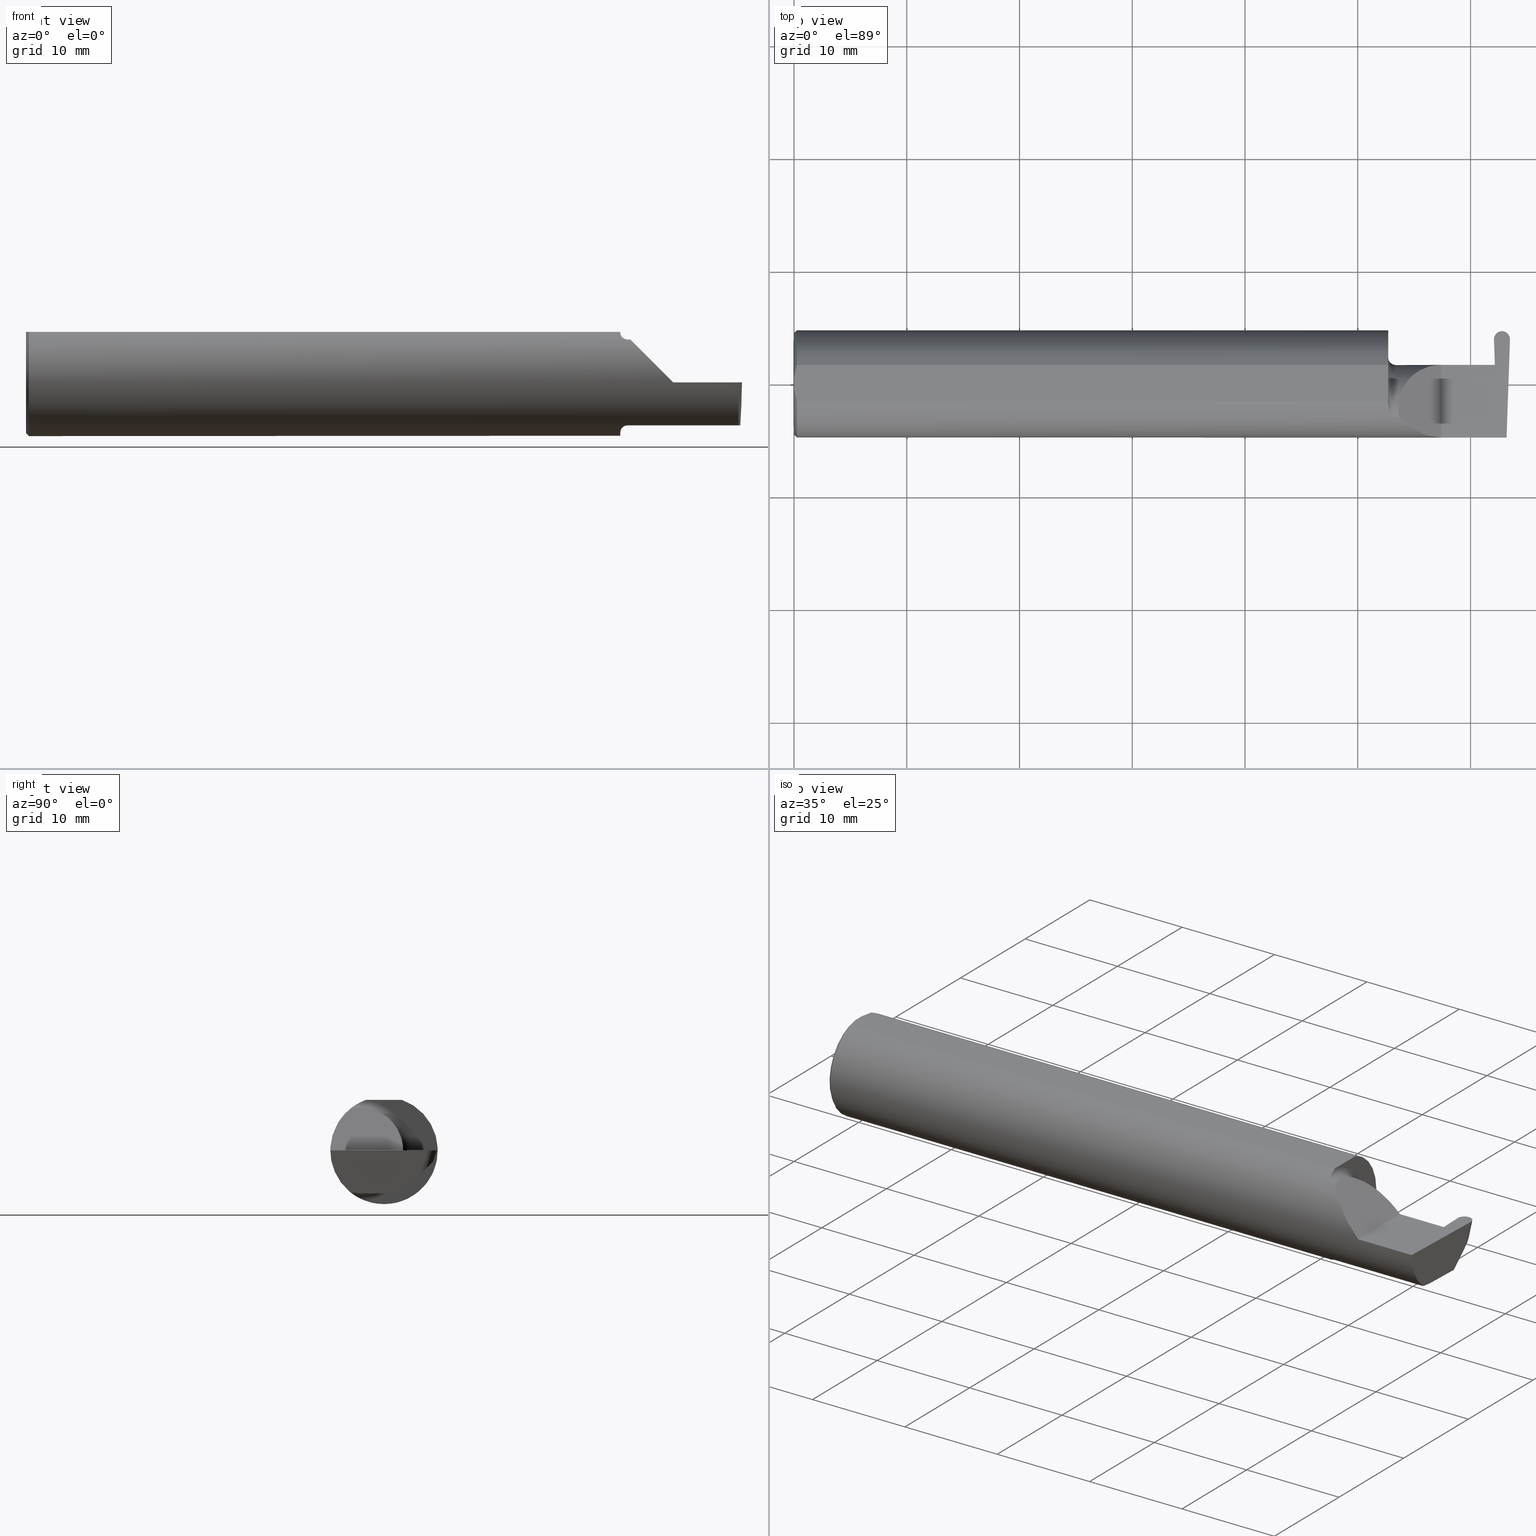
[diagram: canonical four-view strip — front | top / right | iso, engineering-drawing reading convention]
A machine part, canonical four-view strip (front | top / right | iso — engineering-drawing reading convention). The complete STEP part file that produces these views, byte-faithful:
ISO-10303-21;
HEADER;
FILE_DESCRIPTION (( 'STEP AP203' ),
    '1' );
FILE_NAME ('222137-GFR055-6.STEP',
    '2024-06-26T18:54:01',
    ( '' ),
    ( '' ),
    'SwSTEP 2.0',
    'SolidWorks 2024',
    '' );
FILE_SCHEMA (( 'CONFIG_CONTROL_DESIGN' ));
ENDSEC;

DATA;
#1 = LOCAL_TIME ( 11, 54, 1.000000000000000000, #326 ) ;
#2 = DIRECTION ( 'NONE',  ( -1.000000000000000000, -0.000000000000000000, -0.000000000000000000 ) ) ;
#3 = EDGE_CURVE ( 'NONE', #56, #86, #184, .T. ) ;
#4 = ORIENTED_EDGE ( 'NONE', *, *, #737, .T. ) ;
#5 = LINE ( 'NONE', #206, #659 ) ;
#6 = CARTESIAN_POINT ( 'NONE',  ( 2.100000000000000089, -0.08334999999999999354, 0.000000000000000000 ) ) ;
#7 = VERTEX_POINT ( 'NONE', #107 ) ;
#8 = DATE_AND_TIME ( #461, #1 ) ;
#9 = B_SPLINE_CURVE_WITH_KNOTS ( 'NONE', 3,
 ( #585, #716, #652, #30 ),
 .UNSPECIFIED., .F., .F.,
 ( 4, 4 ),
 ( 0.009771445421851449736, 0.01092787937989102981 ),
 .UNSPECIFIED. ) ;
#10 = DIRECTION ( 'NONE',  ( -1.000000000000000000, -0.000000000000000000, -0.000000000000000000 ) ) ;
#11 = ORIENTED_EDGE ( 'NONE', *, *, #116, .T. ) ;
#12 = CALENDAR_DATE ( 2024, 26, 6 ) ;
#13 = CARTESIAN_POINT ( 'NONE',  ( 2.079475235432781677, -0.09757364237049398481, -0.1599863467203318512 ) ) ;
#14 = CIRCLE ( 'NONE', #423, 0.1873499999999999888 ) ;
#15 = AXIS2_PLACEMENT_3D ( 'NONE', #801, #51, #124 ) ;
#16 = CARTESIAN_POINT ( 'NONE',  ( 2.075000000000000178, 0.1873499999999998500, 0.1763499999999999235 ) ) ;
#17 = ORIENTED_EDGE ( 'NONE', *, *, #167, .T. ) ;
#18 = EDGE_CURVE ( 'NONE', #500, #726, #798, .T. ) ;
#19 = ADVANCED_FACE ( 'NONE', ( #667 ), #302, .F. ) ;
#20 = FACE_OUTER_BOUND ( 'NONE', #239, .T. ) ;
#21 = ORIENTED_EDGE ( 'NONE', *, *, #116, .F. ) ;
#22 = CARTESIAN_POINT ( 'NONE',  ( 2.090551048069661633, -0.1140002044565610190, -0.1486821290834930975 ) ) ;
#23 =( BOUNDED_CURVE ( )  B_SPLINE_CURVE ( 3, ( #380, #633, #688, #70 ),
 .UNSPECIFIED., .F., .F. ) 
 B_SPLINE_CURVE_WITH_KNOTS ( ( 4, 4 ),
 ( 5.852427379562164411, 6.746954780470612256 ),
 .UNSPECIFIED. ) 
 CURVE ( )  GEOMETRIC_REPRESENTATION_ITEM ( )  RATIONAL_B_SPLINE_CURVE ( ( 1.000000000000000000, 0.9344226172588802060, 0.9344226172588802060, 1.000000000000000000 ) ) 
 REPRESENTATION_ITEM ( '' )  );
#24 = CARTESIAN_POINT ( 'NONE',  ( 2.471950000000000536, 0.1722830110551551719, -0.03802004048799439290 ) ) ;
#25 = APPROVAL ( #632, 'UNSPECIFIED' ) ;
#26 = ORIENTED_EDGE ( 'NONE', *, *, #745, .T. ) ;
#27 = APPLICATION_CONTEXT ( 'configuration controlled 3d designs of mechanical parts and assemblies' ) ;
#28 = CARTESIAN_POINT ( 'NONE',  ( 2.260000000000000231, -0.2500000000000000555, 2.939152317953647352E-17 ) ) ;
#29 = AXIS2_PLACEMENT_3D ( 'NONE', #233, #117, #483 ) ;
#30 = CARTESIAN_POINT ( 'NONE',  ( 0.000000000000000000, -0.01880691362239451242, 0.1763499999999999235 ) ) ;
#31 = AXIS2_PLACEMENT_3D ( 'NONE', #597, #273, #101 ) ;
#32 = ORGANIZATION ( 'UNSPECIFIED', 'UNSPECIFIED', '' ) ;
#33 = VERTEX_POINT ( 'NONE', #618 ) ;
#34 = EDGE_CURVE ( 'NONE', #653, #66, #360, .T. ) ;
#35 = CC_DESIGN_APPROVAL ( #263, ( #494 ) ) ;
#36 = CARTESIAN_POINT ( 'NONE',  ( 2.876828993045917215, 0.1873499999999998500, 0.1763499999999999235 ) ) ;
#37 = DIRECTION ( 'NONE',  ( -1.224646799147353947E-16, 0.000000000000000000, -1.000000000000000000 ) ) ;
#38 = ORIENTED_EDGE ( 'NONE', *, *, #565, .T. ) ;
#39 = ADVANCED_FACE ( 'NONE', ( #672 ), #113, .T. ) ;
#40 = PLANE ( 'NONE',  #277 ) ;
#41 = CARTESIAN_POINT ( 'NONE',  ( 2.260000000000000231, 0.06665000000000002867, 5.204748896376251932E-17 ) ) ;
#42 = VERTEX_POINT ( 'NONE', #554 ) ;
#43 = DIRECTION ( 'NONE',  ( -0.02739170151060047256, -0.3089010440752013587, -0.9506996579664920288 ) ) ;
#44 = EDGE_CURVE ( 'NONE', #209, #194, #235, .T. ) ;
#45 = CARTESIAN_POINT ( 'NONE',  ( 2.488618975064261996, -0.09477667630339429994, -0.1500000000000000500 ) ) ;
#46 = AXIS2_PLACEMENT_3D ( 'NONE', #399, #536, #647 ) ;
#47 = EDGE_CURVE ( 'NONE', #689, #255, #680, .T. ) ;
#48 = CARTESIAN_POINT ( 'NONE',  ( 2.172132034355963359, 0.06665000000000001479, 0.08786796564403576149 ) ) ;
#49 = LINE ( 'NONE', #307, #657 ) ;
#50 = ORIENTED_EDGE ( 'NONE', *, *, #351, .F. ) ;
#51 = DIRECTION ( 'NONE',  ( -0.000000000000000000, 1.000000000000000000, 1.224646799147353207E-16 ) ) ;
#52 = DIRECTION ( 'NONE',  ( 0.000000000000000000, 0.000000000000000000, -1.000000000000000000 ) ) ;
#53 = DATE_TIME_ROLE ( 'classification_date' ) ;
#54 = CARTESIAN_POINT ( 'NONE',  ( 2.443917087302114766, 0.1556210691174950977, 0.000000000000000000 ) ) ;
#55 = EDGE_CURVE ( 'NONE', #7, #500, #413, .T. ) ;
#56 = VERTEX_POINT ( 'NONE', #428 ) ;
#57 = AXIS2_PLACEMENT_3D ( 'NONE', #84, #803, #678 ) ;
#58 = CYLINDRICAL_SURFACE ( 'NONE', #779, 0.1500000000000000500 ) ;
#59 = DIRECTION ( 'NONE',  ( -0.02739170151060044828, 0.3089010440752013587, 0.9506996579664918068 ) ) ;
#60 = ORIENTED_EDGE ( 'NONE', *, *, #528, .T. ) ;
#61 = LINE ( 'NONE', #484, #642 ) ;
#62 = CARTESIAN_POINT ( 'NONE',  ( 0.000000000000000000, -0.01880691362239451242, 0.1763499999999999235 ) ) ;
#63 = CARTESIAN_POINT ( 'NONE',  ( 0.000000000000000000, 0.000000000000000000, 0.000000000000000000 ) ) ;
#64 = EDGE_CURVE ( 'NONE', #66, #747, #49, .T. ) ;
#65 = FACE_OUTER_BOUND ( 'NONE', #641, .T. ) ;
#66 = VERTEX_POINT ( 'NONE', #604 ) ;
#67 = DIRECTION ( 'NONE',  ( 1.000000000000000000, 0.000000000000000000, 0.000000000000000000 ) ) ;
#68 = AXIS2_PLACEMENT_3D ( 'NONE', #264, #204, #625 ) ;
#69 = CARTESIAN_POINT ( 'NONE',  ( 2.100000000000000089, -0.08334999999999997966, 0.1749999999999999889 ) ) ;
#70 = CARTESIAN_POINT ( 'NONE',  ( 2.488006099050898090, -0.1873499999999999888, 0.000000000000000000 ) ) ;
#71 = EDGE_CURVE ( 'NONE', #7, #756, #792, .T. ) ;
#72 = ORIENTED_EDGE ( 'NONE', *, *, #711, .F. ) ;
#73 = APPROVAL_ROLE ( '' ) ;
#74 = FACE_OUTER_BOUND ( 'NONE', #446, .T. ) ;
#75 = CARTESIAN_POINT ( 'NONE',  ( 2.498888753813990782, 0.1529658124618460957, -0.05733723908130368419 ) ) ;
#76 = ORIENTED_EDGE ( 'NONE', *, *, #737, .F. ) ;
#77 = CC_DESIGN_PERSON_AND_ORGANIZATION_ASSIGNMENT ( #260, #741, ( #501 ) ) ;
#78 = DIRECTION ( 'NONE',  ( 1.000000000000000000, 0.000000000000000000, 0.000000000000000000 ) ) ;
#79 = ORIENTED_EDGE ( 'NONE', *, *, #153, .F. ) ;
#80 = PERSON_AND_ORGANIZATION_ROLE ( 'design_owner' ) ;
#81 = CARTESIAN_POINT ( 'NONE',  ( 2.095724556588812515, -0.1172600179964060629, 0.1461167706989260351 ) ) ;
#82 = AXIS2_PLACEMENT_3D ( 'NONE', #506, #755, #332 ) ;
#83 =( BOUNDED_CURVE ( )  B_SPLINE_CURVE ( 3, ( #421, #430, #743, #114 ),
 .UNSPECIFIED., .F., .F. ) 
 B_SPLINE_CURVE_WITH_KNOTS ( ( 4, 4 ),
 ( 6.199081184676152212, 7.797674339294876411 ),
 .UNSPECIFIED. ) 
 CURVE ( )  GEOMETRIC_REPRESENTATION_ITEM ( )  RATIONAL_B_SPLINE_CURVE ( ( 1.000000000000000000, 0.7981407609938082626, 0.7981407609938082626, 1.000000000000000000 ) ) 
 REPRESENTATION_ITEM ( '' )  );
#84 = CARTESIAN_POINT ( 'NONE',  ( 2.075000000000000178, 0.000000000000000000, 0.000000000000000000 ) ) ;
#85 = LOCAL_TIME ( 11, 54, 1.000000000000000000, #195 ) ;
#86 = VERTEX_POINT ( 'NONE', #120 ) ;
#87 = DIRECTION ( 'NONE',  ( -0.03701744261649873857, 0.7066221440565398915, 0.7066221440565479961 ) ) ;
#88 = CARTESIAN_POINT ( 'NONE',  ( 2.086319809340846820, -0.1102629523538395662, 0.1514982751257170079 ) ) ;
#89 = CC_DESIGN_PERSON_AND_ORGANIZATION_ASSIGNMENT ( #180, #504, ( #501 ) ) ;
#90 = EDGE_LOOP ( 'NONE', ( #308, #518, #614 ) ) ;
#91 = CARTESIAN_POINT ( 'NONE',  ( 2.113883229301068312, -0.1172600179964003175, 0.1461167706989304760 ) ) ;
#92 = EDGE_CURVE ( 'NONE', #811, #500, #243, .T. ) ;
#93 = DIRECTION ( 'NONE',  ( 0.000000000000000000, 0.000000000000000000, 1.000000000000000000 ) ) ;
#94 = ORIENTED_EDGE ( 'NONE', *, *, #144, .T. ) ;
#95 = CARTESIAN_POINT ( 'NONE',  ( 2.109999999999998987, -0.08334999999999999354, 0.1500000000000000500 ) ) ;
#96 = DIRECTION ( 'NONE',  ( 0.01806679408117481400, 0.000000000000000000, -0.9998367821557817559 ) ) ;
#97 = AXIS2_PLACEMENT_3D ( 'NONE', #193, #2, #761 ) ;
#98 = AXIS2_PLACEMENT_3D ( 'NONE', #63, #183, #362 ) ;
#99 = ORIENTED_EDGE ( 'NONE', *, *, #55, .F. ) ;
#100 = CARTESIAN_POINT ( 'NONE',  ( 0.000000000000000000, 0.000000000000000000, 0.000000000000000000 ) ) ;
#101 = DIRECTION ( 'NONE',  ( 0.000000000000000000, 0.000000000000000000, -1.000000000000000000 ) ) ;
#102 = ORIENTED_EDGE ( 'NONE', *, *, #577, .T. ) ;
#103 = CARTESIAN_POINT ( 'NONE',  ( 2.447024025498200750, 0.06664999999999991764, 0.000000000000000000 ) ) ;
#104 = ADVANCED_FACE ( 'NONE', ( #794 ), #728, .F. ) ;
#105 = ORIENTED_EDGE ( 'NONE', *, *, #226, .F. ) ;
#106 = CARTESIAN_POINT ( 'NONE',  ( 2.075000000000000178, -0.06851976604679065053, -0.1743704796142198643 ) ) ;
#107 = CARTESIAN_POINT ( 'NONE',  ( 2.487901662807321390, -0.1172600179964006090, -0.1461167706989303927 ) ) ;
#108 = AXIS2_PLACEMENT_3D ( 'NONE', #100, #414, #276 ) ;
#109 =( BOUNDED_CURVE ( )  B_SPLINE_CURVE ( 3, ( #151, #782, #774, #216 ),
 .UNSPECIFIED., .F., .T. ) 
 B_SPLINE_CURVE_WITH_KNOTS ( ( 4, 4 ),
 ( 4.712388980384688786, 5.606916381293139295 ),
 .UNSPECIFIED. ) 
 CURVE ( )  GEOMETRIC_REPRESENTATION_ITEM ( )  RATIONAL_B_SPLINE_CURVE ( ( 1.000000000000000000, 0.9344226172588797619, 0.9344226172588797619, 1.000000000000000000 ) ) 
 REPRESENTATION_ITEM ( '' )  );
#110 = AXIS2_PLACEMENT_3D ( 'NONE', #234, #493, #179 ) ;
#111 = APPROVAL_PERSON_ORGANIZATION ( #316, #122, #621 ) ;
#112 = CARTESIAN_POINT ( 'NONE',  ( 2.471950000000000536, 0.1754820070127635356, -0.02820230075863391569 ) ) ;
#113 = CYLINDRICAL_SURFACE ( 'NONE', #288, 0.1500000000000000500 ) ;
#114 = CARTESIAN_POINT ( 'NONE',  ( 2.443960049305725857, 0.1543907983005533280, 0.000000000000000000 ) ) ;
#115 = COORDINATED_UNIVERSAL_TIME_OFFSET ( 8, 0, .BEHIND. ) ;
#116 = EDGE_CURVE ( 'NONE', #726, #783, #298, .T. ) ;
#117 = DIRECTION ( 'NONE',  ( -0.9992386149554828290, 0.03489418134010779937, 0.01745240643728358798 ) ) ;
#118 = ORIENTED_EDGE ( 'NONE', *, *, #351, .T. ) ;
#119 = LINE ( 'NONE', #244, #173 ) ;
#120 = CARTESIAN_POINT ( 'NONE',  ( 2.499939950694276103, 0.1543907983005533280, 0.000000000000000000 ) ) ;
#121 = ORIENTED_EDGE ( 'NONE', *, *, #92, .T. ) ;
#122 = APPROVAL ( #797, 'UNSPECIFIED' ) ;
#123 = VECTOR ( 'NONE', #269, 39.37007874015748143 ) ;
#124 = DIRECTION ( 'NONE',  ( 0.000000000000000000, 0.000000000000000000, 1.000000000000000000 ) ) ;
#125 = CARTESIAN_POINT ( 'NONE',  ( 2.469848201527405251, 0.2055726816643639321, 0.06439339291197111736 ) ) ;
#126 = ORIENTED_EDGE ( 'NONE', *, *, #188, .F. ) ;
#127 = EDGE_CURVE ( 'NONE', #194, #433, #613, .T. ) ;
#128 = CARTESIAN_POINT ( 'NONE',  ( 2.076062863587533780, -0.08334999999998818354, 0.1677879614275171183 ) ) ;
#129 = CARTESIAN_POINT ( 'NONE',  ( 2.447024025498200750, 0.06664999999999991764, 0.000000000000000000 ) ) ;
#130 = ADVANCED_FACE ( 'NONE', ( #65 ), #215, .F. ) ;
#131 = ORIENTED_EDGE ( 'NONE', *, *, #350, .F. ) ;
#132 = DIRECTION ( 'NONE',  ( 0.000000000000000000, 0.000000000000000000, 1.000000000000000000 ) ) ;
#133 = DIRECTION ( 'NONE',  ( -0.02739170151060046909, -0.3089010440752013587, -0.9506996579664918068 ) ) ;
#134 = ORIENTED_EDGE ( 'NONE', *, *, #203, .T. ) ;
#135 = PERSON_AND_ORGANIZATION ( #580, #32 ) ;
#136 = AXIS2_PLACEMENT_3D ( 'NONE', #522, #392, #637 ) ;
#137 = CARTESIAN_POINT ( 'NONE',  ( 2.100000000000000089, -0.08334999999999996578, -0.1500000000000000777 ) ) ;
#138 = SECURITY_CLASSIFICATION ( '', '', #567 ) ;
#139 = DIRECTION ( 'NONE',  ( -1.000000000000000000, -0.000000000000000000, -0.000000000000000000 ) ) ;
#140 = ORIENTED_EDGE ( 'NONE', *, *, #272, .F. ) ;
#141 = APPLICATION_PROTOCOL_DEFINITION ( 'international standard', 'config_control_design', 1994, #27 ) ;
#142 = CYLINDRICAL_SURFACE ( 'NONE', #136, 0.02800000000000000405 ) ;
#143 = ORIENTED_EDGE ( 'NONE', *, *, #144, .F. ) ;
#144 = EDGE_CURVE ( 'NONE', #400, #415, #435, .T. ) ;
#145 = CARTESIAN_POINT ( 'NONE',  ( 2.499982912697886750, 0.1556210691174950700, 0.000000000000000000 ) ) ;
#146 = DIRECTION ( 'NONE',  ( -1.000000000000000000, -0.000000000000000000, -0.000000000000000000 ) ) ;
#147 = EDGE_LOOP ( 'NONE', ( #582, #174, #99, #436, #72 ) ) ;
#148 = FACE_OUTER_BOUND ( 'NONE', #815, .T. ) ;
#149 = CARTESIAN_POINT ( 'NONE',  ( 2.084249444250374061, -0.1073163636891284328, 0.1536158790136665231 ) ) ;
#150 = AXIS2_PLACEMENT_3D ( 'NONE', #342, #650, #660 ) ;
#151 = CARTESIAN_POINT ( 'NONE',  ( 2.260000000000000231, -0.1873499999999999888, 2.939152317953647352E-17 ) ) ;
#152 = ORIENTED_EDGE ( 'NONE', *, *, #758, .T. ) ;
#153 = EDGE_CURVE ( 'NONE', #325, #56, #687, .T. ) ;
#154 = CARTESIAN_POINT ( 'NONE',  ( 2.109999999999998543, 0.004517965644035750600, 0.1500000000000000500 ) ) ;
#155 = LINE ( 'NONE', #593, #629 ) ;
#156 = ORIENTED_EDGE ( 'NONE', *, *, #758, .F. ) ;
#157 = FACE_OUTER_BOUND ( 'NONE', #775, .T. ) ;
#158 = ADVANCED_FACE ( 'NONE', ( #208 ), #668, .F. ) ;
#159 = PLANE ( 'NONE',  #346 ) ;
#160 = VERTEX_POINT ( 'NONE', #693 ) ;
#161 = DIRECTION ( 'NONE',  ( 0.02739170151060044828, -0.3089010440752013031, -0.9506996579664918068 ) ) ;
#162 = CARTESIAN_POINT ( 'NONE',  ( 2.500000000000000000, -0.2500000000000000555, 0.000000000000000000 ) ) ;
#163 = VECTOR ( 'NONE', #133, 39.37007874015748143 ) ;
#164 = ORIENTED_EDGE ( 'NONE', *, *, #711, .T. ) ;
#165 = DIRECTION ( 'NONE',  ( 0.000000000000000000, 0.000000000000000000, 1.000000000000000000 ) ) ;
#166 = VERTEX_POINT ( 'NONE', #700 ) ;
#167 = EDGE_CURVE ( 'NONE', #619, #397, #214, .T. ) ;
#168 = PLANE ( 'NONE',  #150 ) ;
#169 = CARTESIAN_POINT ( 'NONE',  ( 2.499950392650356346, 0.1545085540790380740, 0.0003624150208497695482 ) ) ;
#170 = EDGE_LOOP ( 'NONE', ( #218, #50, #76, #21 ) ) ;
#171 = CARTESIAN_POINT ( 'NONE',  ( 2.075000000000000178, -0.08334999999999999354, 0.000000000000000000 ) ) ;
#172 = DIRECTION ( 'NONE',  ( -0.0003154085283454281579, 0.9999999502587288980, 0.000000000000000000 ) ) ;
#173 = VECTOR ( 'NONE', #674, 39.37007874015748143 ) ;
#174 = ORIENTED_EDGE ( 'NONE', *, *, #18, .F. ) ;
#175 = CARTESIAN_POINT ( 'NONE',  ( 2.471950000000000536, 0.1786780247761809715, -0.01837984983076659806 ) ) ;
#176 = EDGE_CURVE ( 'NONE', #726, #488, #630, .T. ) ;
#177 = DIRECTION ( 'NONE',  ( -0.7071067811865509034, 0.000000000000000000, 0.7071067811865440200 ) ) ;
#178 = ORIENTED_EDGE ( 'NONE', *, *, #299, .F. ) ;
#179 = DIRECTION ( 'NONE',  ( 0.000000000000000000, 0.000000000000000000, 1.000000000000000000 ) ) ;
#180 = PERSON_AND_ORGANIZATION ( #580, #32 ) ;
#181 = DIRECTION ( 'NONE',  ( 0.02739170151060046562, 0.3089010440752013031, 0.9506996579664918068 ) ) ;
#182 = VERTEX_POINT ( 'NONE', #579 ) ;
#183 = DIRECTION ( 'NONE',  ( -1.000000000000000000, -0.000000000000000000, -0.000000000000000000 ) ) ;
#184 = LINE ( 'NONE', #169, #749 ) ;
#185 = CC_DESIGN_PERSON_AND_ORGANIZATION_ASSIGNMENT ( #382, #627, ( #494 ) ) ;
#186 = EDGE_LOOP ( 'NONE', ( #673, #79, #767, #540, #546 ) ) ;
#187 = CARTESIAN_POINT ( 'NONE',  ( 0.001616639753276218755, 0.03405189565400963680, 0.1763499999999999235 ) ) ;
#188 = EDGE_CURVE ( 'NONE', #42, #550, #458, .T. ) ;
#189 = DIRECTION ( 'NONE',  ( 1.000000000000000000, 0.000000000000000000, 0.000000000000000000 ) ) ;
#190 = ORIENTED_EDGE ( 'NONE', *, *, #644, .T. ) ;
#191 = LENGTH_MEASURE_WITH_UNIT ( LENGTH_MEASURE( 0.02539999999999999897 ), #564 );
#192 = UNCERTAINTY_MEASURE_WITH_UNIT (LENGTH_MEASURE( 1.000000000000000082E-05 ), #519, 'distance_accuracy_value', 'NONE');
#193 = CARTESIAN_POINT ( 'NONE',  ( 2.100000000000000089, -0.08334999999999997966, 0.000000000000000000 ) ) ;
#194 = VERTEX_POINT ( 'NONE', #129 ) ;
#195 = COORDINATED_UNIVERSAL_TIME_OFFSET ( 8, 0, .BEHIND. ) ;
#196 = DIRECTION ( 'NONE',  ( 0.000000000000000000, -1.000000000000000000, 0.000000000000000000 ) ) ;
#197 = CARTESIAN_POINT ( 'NONE',  ( 0.009999999999999346217, 0.000000000000000000, 0.000000000000000000 ) ) ;
#198 = ORIENTED_EDGE ( 'NONE', *, *, #478, .F. ) ;
#199 = APPROVAL_STATUS ( 'not_yet_approved' ) ;
#200 = AXIS2_PLACEMENT_3D ( 'NONE', #511, #622, #449 ) ;
#201 = AXIS2_PLACEMENT_3D ( 'NONE', #305, #735, #796 ) ;
#202 = CARTESIAN_POINT ( 'NONE',  ( 2.097868998470238555, -0.1172600179964006506, -0.1461167706989303927 ) ) ;
#203 = EDGE_CURVE ( 'NONE', #182, #400, #485, .T. ) ;
#204 = DIRECTION ( 'NONE',  ( -1.000000000000000000, -0.000000000000000000, -0.000000000000000000 ) ) ;
#205 = ORIENTED_EDGE ( 'NONE', *, *, #416, .F. ) ;
#206 = CARTESIAN_POINT ( 'NONE',  ( 2.496474746315712423, 0.1068850723125631674, -0.1034179792305871259 ) ) ;
#207 = CARTESIAN_POINT ( 'NONE',  ( 2.084228130464465867, -0.1072797540790366294, -0.1536407449207395914 ) ) ;
#208 = FACE_OUTER_BOUND ( 'NONE', #720, .T. ) ;
#209 = VERTEX_POINT ( 'NONE', #389 ) ;
#210 = CARTESIAN_POINT ( 'NONE',  ( 2.075000000000000178, 0.000000000000000000, 0.000000000000000000 ) ) ;
#211 = ORIENTED_EDGE ( 'NONE', *, *, #256, .T. ) ;
#212 = EDGE_CURVE ( 'NONE', #533, #371, #328, .T. ) ;
#213 = CARTESIAN_POINT ( 'NONE',  ( 2.472196486352602030, 0.1846500000000000363, 0.000000000000000000 ) ) ;
#214 = CIRCLE ( 'NONE', #68, 0.1749999999999999889 ) ;
#215 = TOROIDAL_SURFACE ( 'NONE', #97, 0.1749999999999999889, 0.02499999999999994241 ) ;
#216 = CARTESIAN_POINT ( 'NONE',  ( 2.113883229301068312, -0.1172600179964003175, 0.1461167706989304760 ) ) ;
#217 = EDGE_CURVE ( 'NONE', #7, #42, #23, .T. ) ;
#218 = ORIENTED_EDGE ( 'NONE', *, *, #478, .T. ) ;
#219 = CARTESIAN_POINT ( 'NONE',  ( 2.076062863587535556, -0.08334999999999991027, -0.1677879614275112619 ) ) ;
#220 = DIRECTION ( 'NONE',  ( -0.01806954526206910883, 0.01744955702544858864, 0.9996844524616943506 ) ) ;
#221 = ORIENTED_EDGE ( 'NONE', *, *, #521, .F. ) ;
#222 = PLANE ( 'NONE',  #712 ) ;
#223 = DIRECTION ( 'NONE',  ( 1.000000000000000000, 0.000000000000000000, 0.000000000000000000 ) ) ;
#224 = ORIENTED_EDGE ( 'NONE', *, *, #784, .T. ) ;
#225 = CARTESIAN_POINT ( 'NONE',  ( 2.109999999999998987, -0.08334999999999999354, 0.1500000000000000500 ) ) ;
#226 = EDGE_CURVE ( 'NONE', #619, #634, #770, .T. ) ;
#227 = CARTESIAN_POINT ( 'NONE',  ( 0.009999999999999346217, 0.06325108694718235836, 0.1763499999999999235 ) ) ;
#228 = VECTOR ( 'NONE', #814, 39.37007874015748143 ) ;
#229 = ORIENTED_EDGE ( 'NONE', *, *, #294, .T. ) ;
#230 = DIRECTION ( 'NONE',  ( 0.000000000000000000, -0.9998476951563912696, 0.01745240643728358451 ) ) ;
#231 = ORIENTED_EDGE ( 'NONE', *, *, #361, .T. ) ;
#232 = DIRECTION ( 'NONE',  ( 0.7071067811865426878, 0.000000000000000000, -0.7071067811865523467 ) ) ;
#233 = CARTESIAN_POINT ( 'NONE',  ( 2.499982912697886750, 0.1556210691174950700, 0.000000000000000000 ) ) ;
#234 = CARTESIAN_POINT ( 'NONE',  ( 0.000000000000000000, 0.000000000000000000, 0.000000000000000000 ) ) ;
#235 = LINE ( 'NONE', #804, #318 ) ;
#236 = CONICAL_SURFACE ( 'NONE', #699, 0.1773500000000005072, 0.7853981633974551624 ) ;
#237 = ORIENTED_EDGE ( 'NONE', *, *, #256, .F. ) ;
#238 = DIRECTION ( 'NONE',  ( 0.000000000000000000, 0.000000000000000000, 1.000000000000000000 ) ) ;
#239 = EDGE_LOOP ( 'NONE', ( #250, #237, #442, #17 ) ) ;
#240 = ORIENTED_EDGE ( 'NONE', *, *, #549, .T. ) ;
#241 = CARTESIAN_POINT ( 'NONE',  ( 0.009999999999999346217, 0.06325108694718235836, 0.1763499999999999235 ) ) ;
#242 = CARTESIAN_POINT ( 'NONE',  ( 2.445011246186010734, 0.1529658124618456516, -0.05733723908130411440 ) ) ;
#243 = LINE ( 'NONE', #295, #385 ) ;
#244 = CARTESIAN_POINT ( 'NONE',  ( 2.447263571767182899, 0.1948092623211197250, -0.01549378922202959696 ) ) ;
#245 = EDGE_CURVE ( 'NONE', #371, #488, #552, .T. ) ;
#246 = CARTESIAN_POINT ( 'NONE',  ( 2.075000000000000178, -0.08334999999999999354, 0.1500000000000000500 ) ) ;
#247 = ORIENTED_EDGE ( 'NONE', *, *, #188, .T. ) ;
#248 = VECTOR ( 'NONE', #535, 39.37007874015748143 ) ;
#249 = DIRECTION ( 'NONE',  ( -0.03489949670249503644, 0.9993908270190959842, -0.000000000000000000 ) ) ;
#250 = ORIENTED_EDGE ( 'NONE', *, *, #396, .T. ) ;
#251 = APPROVAL_DATE_TIME ( #266, #263 ) ;
#252 = CARTESIAN_POINT ( 'NONE',  ( 2.095804171164107110, -0.1167508198888948939, -0.1465276362740038363 ) ) ;
#253 = B_SPLINE_CURVE_WITH_KNOTS ( 'NONE', 3,
 ( #323, #202, #252, #462, #22, #339, #207, #510, #13, #453, #769, #524 ),
 .UNSPECIFIED., .F., .F.,
 ( 4, 2, 2, 2, 2, 4 ),
 ( 1.967976973726874814E-07, 0.0001599896235275606951, 0.0003197824493577486652, 0.0006393681010181240633, 0.0009589537526784994072, 0.001278539404338874426 ),
 .UNSPECIFIED. ) ;
#254 = CARTESIAN_POINT ( 'NONE',  ( 2.471950000000000536, 0.1722830110551551719, -0.03802004048799439290 ) ) ;
#255 = VERTEX_POINT ( 'NONE', #62 ) ;
#256 = EDGE_CURVE ( 'NONE', #296, #491, #766, .T. ) ;
#257 = APPROVAL_DATE_TIME ( #8, #25 ) ;
#258 = DIRECTION ( 'NONE',  ( -1.000000000000000000, -0.000000000000000000, -0.000000000000000000 ) ) ;
#259 = ORIENTED_EDGE ( 'NONE', *, *, #92, .F. ) ;
#260 = PERSON_AND_ORGANIZATION ( #580, #32 ) ;
#261 = VECTOR ( 'NONE', #394, 39.37007874015748854 ) ;
#262 = CARTESIAN_POINT ( 'NONE',  ( 2.100000000000000089, -0.1172600179964006090, 0.1461167706989303927 ) ) ;
#263 = APPROVAL ( #199, 'UNSPECIFIED' ) ;
#264 = CARTESIAN_POINT ( 'NONE',  ( 2.075000000000000178, -0.08334999999999999354, 0.000000000000000000 ) ) ;
#265 = ORIENTED_EDGE ( 'NONE', *, *, #153, .T. ) ;
#266 = DATE_AND_TIME ( #12, #617 ) ;
#267 = CARTESIAN_POINT ( 'NONE',  ( 2.447024025498200750, 0.06664999999999991764, 0.000000000000000000 ) ) ;
#268 = ADVANCED_FACE ( 'NONE', ( #702 ), #142, .T. ) ;
#269 = DIRECTION ( 'NONE',  ( -1.000000000000000000, -0.000000000000000000, -0.000000000000000000 ) ) ;
#270 =( BOUNDED_CURVE ( )  B_SPLINE_CURVE ( 3, ( #369, #175, #112, #793 ),
 .UNSPECIFIED., .F., .F. ) 
 B_SPLINE_CURVE_WITH_KNOTS ( ( 4, 4 ),
 ( 1.570796326794885678, 1.601113425804750801 ),
 .UNSPECIFIED. ) 
 CURVE ( )  GEOMETRIC_REPRESENTATION_ITEM ( )  RATIONAL_B_SPLINE_CURVE ( ( 1.000000000000000000, 0.9999234075922796006, 0.9999234075922796006, 1.000000000000000000 ) ) 
 REPRESENTATION_ITEM ( '' )  );
#271 = ORIENTED_EDGE ( 'NONE', *, *, #212, .T. ) ;
#272 = EDGE_CURVE ( 'NONE', #403, #805, #771, .T. ) ;
#273 = DIRECTION ( 'NONE',  ( 1.000000000000000000, 0.000000000000000000, 0.000000000000000000 ) ) ;
#274 = ORIENTED_EDGE ( 'NONE', *, *, #589, .T. ) ;
#275 = AXIS2_PLACEMENT_3D ( 'NONE', #738, #611, #52 ) ;
#276 = DIRECTION ( 'NONE',  ( 0.000000000000000000, 0.000000000000000000, -1.000000000000000000 ) ) ;
#277 = AXIS2_PLACEMENT_3D ( 'NONE', #592, #715, #280 ) ;
#278 = DIRECTION ( 'NONE',  ( 1.000000000000000000, 0.000000000000000000, -0.000000000000000000 ) ) ;
#279 = ORIENTED_EDGE ( 'NONE', *, *, #34, .T. ) ;
#280 = DIRECTION ( 'NONE',  ( 0.000000000000000000, 0.000000000000000000, -1.000000000000000000 ) ) ;
#281 = CARTESIAN_POINT ( 'NONE',  ( 2.437903374698175529, 0.06664999999999991764, 0.000000000000000000 ) ) ;
#282 = ORIENTED_EDGE ( 'NONE', *, *, #521, .T. ) ;
#283 = ADVANCED_FACE ( 'NONE', ( #751 ), #466, .F. ) ;
#284 = LINE ( 'NONE', #605, #248 ) ;
#285 = FACE_OUTER_BOUND ( 'NONE', #90, .T. ) ;
#286 = ORIENTED_EDGE ( 'NONE', *, *, #71, .F. ) ;
#287 = LINE ( 'NONE', #790, #777 ) ;
#288 = AXIS2_PLACEMENT_3D ( 'NONE', #548, #558, #543 ) ;
#289 = VECTOR ( 'NONE', #139, 39.37007874015748143 ) ;
#290 = VECTOR ( 'NONE', #87, 39.37007874015748143 ) ;
#291 = DIRECTION ( 'NONE',  ( -0.01806954526206910883, 0.01744955702544858864, 0.9996844524616943506 ) ) ;
#292 = CARTESIAN_POINT ( 'NONE',  ( 2.260000000000000231, 0.06665000000000002867, 5.204748896376251932E-17 ) ) ;
#293 = CARTESIAN_POINT ( 'NONE',  ( 2.471950000000000536, 0.1722830110551551719, -0.03802004048799439290 ) ) ;
#294 = EDGE_CURVE ( 'NONE', #166, #805, #757, .T. ) ;
#295 = CARTESIAN_POINT ( 'NONE',  ( 2.489315391880043915, -0.07483390797619585144, -0.1500000000000000500 ) ) ;
#296 = VERTEX_POINT ( 'NONE', #336 ) ;
#297 = FACE_OUTER_BOUND ( 'NONE', #147, .T. ) ;
#298 = LINE ( 'NONE', #367, #529 ) ;
#299 = EDGE_CURVE ( 'NONE', #349, #33, #155, .T. ) ;
#300 = LINE ( 'NONE', #489, #321 ) ;
#301 = VECTOR ( 'NONE', #441, 39.37007874015748143 ) ;
#302 = PLANE ( 'NONE',  #764 ) ;
#303 = ORIENTED_EDGE ( 'NONE', *, *, #64, .T. ) ;
#304 = CC_DESIGN_PERSON_AND_ORGANIZATION_ASSIGNMENT ( #306, #439, ( #138 ) ) ;
#305 = CARTESIAN_POINT ( 'NONE',  ( 2.100000000000000089, -0.08334999999999999354, 0.000000000000000000 ) ) ;
#306 = PERSON_AND_ORGANIZATION ( #580, #32 ) ;
#307 = CARTESIAN_POINT ( 'NONE',  ( -0.001039370078740541395, 0.1846500000000000363, 0.000000000000000000 ) ) ;
#308 = ORIENTED_EDGE ( 'NONE', *, *, #481, .F. ) ;
#309 = FACE_OUTER_BOUND ( 'NONE', #724, .T. ) ;
#310 = ADVANCED_FACE ( 'NONE', ( #20 ), #402, .T. ) ;
#311 = APPROVAL_DATE_TIME ( #808, #122 ) ;
#312 = CARTESIAN_POINT ( 'NONE',  ( 2.075000000000000178, 0.06665000000000002867, 5.204748896376251932E-17 ) ) ;
#313 = ORIENTED_EDGE ( 'NONE', *, *, #528, .F. ) ;
#314 = DIRECTION ( 'NONE',  ( -0.03489949670249503644, 0.9993908270190959842, 0.000000000000000000 ) ) ;
#315 = B_SPLINE_CURVE_WITH_KNOTS ( 'NONE', 3,
 ( #335, #709, #636, #149, #88, #444, #81, #262 ),
 .UNSPECIFIED., .F., .F.,
 ( 4, 2, 2, 4 ),
 ( 0.0004561457252213468741, 0.001084815134961802192, 0.001399149839832029363, 0.001713484544702256317 ),
 .UNSPECIFIED. ) ;
#316 = PERSON_AND_ORGANIZATION ( #580, #32 ) ;
#317 = CARTESIAN_POINT ( 'NONE',  ( 2.075344683557281300, -0.07855153123406183324, 0.1701716388274757685 ) ) ;
#318 = VECTOR ( 'NONE', #291, 39.37007874015748854 ) ;
#319 = AXIS2_PLACEMENT_3D ( 'NONE', #69, #196, #447 ) ;
#320 = ORIENTED_EDGE ( 'NONE', *, *, #418, .F. ) ;
#321 = VECTOR ( 'NONE', #556, 39.37007874015748143 ) ;
#322 = CARTESIAN_POINT ( 'NONE',  ( 2.437903374698175529, 0.06664999999999991764, 0.000000000000000000 ) ) ;
#323 = CARTESIAN_POINT ( 'NONE',  ( 2.100000000000000089, -0.1172600179964006090, -0.1461167706989303927 ) ) ;
#324 = CARTESIAN_POINT ( 'NONE',  ( 2.497553638666705655, 0.1274799371216592259, -0.08282311442149083158 ) ) ;
#325 = VERTEX_POINT ( 'NONE', #24 ) ;
#326 = COORDINATED_UNIVERSAL_TIME_OFFSET ( 8, 0, .BEHIND. ) ;
#327 = CARTESIAN_POINT ( 'NONE',  ( -0.001039370078740541395, 0.1723030515431495657, -0.03799999999999999906 ) ) ;
#328 = LINE ( 'NONE', #246, #301 ) ;
#329 = ORIENTED_EDGE ( 'NONE', *, *, #784, .F. ) ;
#330 = PERSON_AND_ORGANIZATION ( #580, #32 ) ;
#331 = CARTESIAN_POINT ( 'NONE',  ( 2.075000000000000178, 0.06325108694718235836, 0.1763499999999999235 ) ) ;
#332 = DIRECTION ( 'NONE',  ( 0.000000000000000000, 0.000000000000000000, 1.000000000000000000 ) ) ;
#333 = ORIENTED_EDGE ( 'NONE', *, *, #549, .F. ) ;
#334 = CONICAL_SURFACE ( 'NONE', #108, 0.1773500000000005072, 0.7853981633974551624 ) ;
#335 = CARTESIAN_POINT ( 'NONE',  ( 2.076062863587533780, -0.08334999999998818354, 0.1677879614275171183 ) ) ;
#336 = CARTESIAN_POINT ( 'NONE',  ( 2.075000000000000178, -0.06325108694718283020, 0.1763499999999999235 ) ) ;
#337 = ORIENTED_EDGE ( 'NONE', *, *, #603, .T. ) ;
#338 = EDGE_CURVE ( 'NONE', #550, #33, #109, .T. ) ;
#339 = CARTESIAN_POINT ( 'NONE',  ( 2.086340974786207170, -0.1102890168945985933, -0.1514792188789464422 ) ) ;
#340 = FACE_OUTER_BOUND ( 'NONE', #464, .T. ) ;
#341 = ORIENTED_EDGE ( 'NONE', *, *, #338, .T. ) ;
#342 = CARTESIAN_POINT ( 'NONE',  ( -0.001039370078740541395, 0.1846500000000000363, 0.000000000000000000 ) ) ;
#343 = CARTESIAN_POINT ( 'NONE',  ( 2.437872916049129923, 0.06661954135095467244, -0.001744974835127337774 ) ) ;
#344 = ORIENTED_EDGE ( 'NONE', *, *, #245, .T. ) ;
#345 = FACE_OUTER_BOUND ( 'NONE', #354, .T. ) ;
#346 = AXIS2_PLACEMENT_3D ( 'NONE', #395, #655, #96 ) ;
#347 = APPROVAL_PERSON_ORGANIZATION ( #135, #25, #73 ) ;
#348 = CARTESIAN_POINT ( 'NONE',  ( 2.100000000000000089, -0.08334999999999997966, 0.1500000000000000777 ) ) ;
#349 = VERTEX_POINT ( 'NONE', #539 ) ;
#350 = EDGE_CURVE ( 'NONE', #182, #255, #9, .T. ) ;
#351 = EDGE_CURVE ( 'NONE', #374, #209, #661, .T. ) ;
#352 = CARTESIAN_POINT ( 'NONE',  ( 2.109999999999998987, -0.08334999999999999354, 0.1500000000000000500 ) ) ;
#353 = CARTESIAN_POINT ( 'NONE',  ( 2.449666718533190846, 0.06409798100084941608, -0.1462050705423014185 ) ) ;
#354 = EDGE_LOOP ( 'NONE', ( #26, #211, #231, #156, #333, #131 ) ) ;
#355 = CARTESIAN_POINT ( 'NONE',  ( 2.499939950694276103, 0.1543907983005533280, 0.000000000000000000 ) ) ;
#356 = ORIENTED_EDGE ( 'NONE', *, *, #623, .F. ) ;
#357 = DIRECTION ( 'NONE',  ( 0.000000000000000000, 0.9510565162951533091, -0.3090169943749483950 ) ) ;
#358 = ADVANCED_FACE ( 'NONE', ( #340 ), #590, .F. ) ;
#359 = VECTOR ( 'NONE', #161, 39.37007874015748854 ) ;
#360 = LINE ( 'NONE', #125, #566 ) ;
#361 = EDGE_CURVE ( 'NONE', #491, #415, #710, .T. ) ;
#362 = DIRECTION ( 'NONE',  ( 0.000000000000000000, 0.000000000000000000, -1.000000000000000000 ) ) ;
#363 = ADVANCED_FACE ( 'NONE', ( #406 ), #159, .F. ) ;
#364 = CARTESIAN_POINT ( 'NONE',  ( 2.733184360054361939, -0.08335000000000014619, -0.1500000000000000500 ) ) ;
#365 = ORIENTED_EDGE ( 'NONE', *, *, #722, .T. ) ;
#366 = CARTESIAN_POINT ( 'NONE',  ( 2.471950000000000536, 0.1818703299733204493, -0.008554944679891261436 ) ) ;
#367 = CARTESIAN_POINT ( 'NONE',  ( 2.449781826481273406, -0.08343938758049006255, -0.1500000000000000500 ) ) ;
#368 = ORIENTED_EDGE ( 'NONE', *, *, #610, .T. ) ;
#369 = CARTESIAN_POINT ( 'NONE',  ( 2.471950000000000536, 0.1818703299733204493, -0.008554944679891261436 ) ) ;
#370 = AXIS2_PLACEMENT_3D ( 'NONE', #472, #93, #278 ) ;
#371 = VERTEX_POINT ( 'NONE', #348 ) ;
#372 = AXIS2_PLACEMENT_3D ( 'NONE', #474, #43, #357 ) ;
#373 = EDGE_CURVE ( 'NONE', #349, #371, #681, .T. ) ;
#374 = VERTEX_POINT ( 'NONE', #353 ) ;
#375 = FACE_OUTER_BOUND ( 'NONE', #393, .T. ) ;
#376 = DATE_AND_TIME ( #557, #452 ) ;
#377 = CARTESIAN_POINT ( 'NONE',  ( 2.076062863587533780, -0.08334999999998818354, 0.1677879614275171183 ) ) ;
#378 = DIRECTION ( 'NONE',  ( -1.000000000000000000, -0.000000000000000000, -0.000000000000000000 ) ) ;
#379 = COORDINATED_UNIVERSAL_TIME_OFFSET ( 8, 0, .BEHIND. ) ;
#380 = CARTESIAN_POINT ( 'NONE',  ( 2.487901662807321390, -0.1172600179964006090, -0.1461167706989303927 ) ) ;
#381 = ORIENTED_EDGE ( 'NONE', *, *, #44, .F. ) ;
#382 = PERSON_AND_ORGANIZATION ( #580, #32 ) ;
#383 = CARTESIAN_POINT ( 'NONE',  ( 2.449781798287666845, -0.08334999999999999354, -0.1500000000000000500 ) ) ;
#384 = CARTESIAN_POINT ( 'NONE',  ( 2.488291197303068802, 0.1715101730526979174, -0.03879287849045171682 ) ) ;
#385 = VECTOR ( 'NONE', #675, 39.37007874015748143 ) ;
#386 = AXIS2_PLACEMENT_3D ( 'NONE', #197, #189, #445 ) ;
#387 = ORIENTED_EDGE ( 'NONE', *, *, #396, .F. ) ;
#388 = CARTESIAN_POINT ( 'NONE',  ( 0.000000000000000000, 0.000000000000000000, 0.000000000000000000 ) ) ;
#389 = CARTESIAN_POINT ( 'NONE',  ( 2.447118648061411772, 0.06655862405286416816, -0.005234924505382331644 ) ) ;
#390 = ORIENTED_EDGE ( 'NONE', *, *, #338, .F. ) ;
#391 = PLANE ( 'NONE',  #616 ) ;
#392 = DIRECTION ( 'NONE',  ( -0.02739170151060045175, 0.3089010440752013587, 0.9506996579664920288 ) ) ;
#393 = EDGE_LOOP ( 'NONE', ( #286, #734, #247, #341, #178, #512, #105, #320, #789, #134, #94, #467, #387, #221, #591 ) ) ;
#394 = DIRECTION ( 'NONE',  ( -0.03489949670249509889, -0.9993908270190959842, 0.000000000000000000 ) ) ;
#395 = CARTESIAN_POINT ( 'NONE',  ( 2.450028168451479083, -2.386252171265519806, -0.1234370960985020360 ) ) ;
#396 = EDGE_CURVE ( 'NONE', #397, #491, #14, .T. ) ;
#397 = VERTEX_POINT ( 'NONE', #410 ) ;
#398 = VECTOR ( 'NONE', #220, 39.37007874015748854 ) ;
#399 = CARTESIAN_POINT ( 'NONE',  ( 2.100000000000000089, -0.08334999999999999354, 0.000000000000000000 ) ) ;
#400 = VERTEX_POINT ( 'NONE', #599 ) ;
#401 = CARTESIAN_POINT ( 'NONE',  ( 2.075346246588685162, -0.07856197451716401270, -0.1701664510438046229 ) ) ;
#402 = PLANE ( 'NONE',  #31 ) ;
#403 = VERTEX_POINT ( 'NONE', #41 ) ;
#404 = FACE_OUTER_BOUND ( 'NONE', #186, .T. ) ;
#405 = ADVANCED_FACE ( 'NONE', ( #285 ), #765, .F. ) ;
#406 = FACE_OUTER_BOUND ( 'NONE', #170, .T. ) ;
#407 = ORIENTED_EDGE ( 'NONE', *, *, #468, .T. ) ;
#408 = DIRECTION ( 'NONE',  ( 0.000000000000000000, -0.01745240643728358451, -0.9998476951563912696 ) ) ;
#409 = CIRCLE ( 'NONE', #57, 0.1873499999999999888 ) ;
#410 = CARTESIAN_POINT ( 'NONE',  ( 2.075000000000000178, -0.06851976604679065053, -0.1743704796142198643 ) ) ;
#411 = EDGE_LOOP ( 'NONE', ( #381, #573, #229, #460 ) ) ;
#412 = CC_DESIGN_DATE_AND_TIME_ASSIGNMENT ( #376, #53, ( #138 ) ) ;
#413 =( BOUNDED_CURVE ( )  B_SPLINE_CURVE ( 3, ( #545, #487, #45, #732 ),
 .UNSPECIFIED., .F., .F. ) 
 B_SPLINE_CURVE_WITH_KNOTS ( ( 4, 4 ),
 ( 0.8789888184544266680, 1.107026853503869868 ),
 .UNSPECIFIED. ) 
 CURVE ( )  GEOMETRIC_REPRESENTATION_ITEM ( )  RATIONAL_B_SPLINE_CURVE ( ( 1.000000000000000000, 0.9956712472009929815, 0.9956712472009929815, 1.000000000000000000 ) ) 
 REPRESENTATION_ITEM ( '' )  );
#414 = DIRECTION ( 'NONE',  ( 1.000000000000000000, 0.000000000000000000, 0.000000000000000000 ) ) ;
#415 = VERTEX_POINT ( 'NONE', #227 ) ;
#416 = EDGE_CURVE ( 'NONE', #772, #325, #690, .T. ) ;
#417 = DIRECTION ( 'NONE',  ( 1.000000000000000000, 0.000000000000000000, -0.000000000000000000 ) ) ;
#418 = EDGE_CURVE ( 'NONE', #296, #619, #409, .T. ) ;
#419 = DIRECTION ( 'NONE',  ( -0.7071067811865441310, 0.000000000000000000, -0.7071067811865510144 ) ) ;
#420 = ORIENTED_EDGE ( 'NONE', *, *, #47, .F. ) ;
#421 = CARTESIAN_POINT ( 'NONE',  ( 2.471703513647399486, 0.1846500000000000363, 0.000000000000000000 ) ) ;
#422 = VECTOR ( 'NONE', #810, 39.37007874015748143 ) ;
#423 = AXIS2_PLACEMENT_3D ( 'NONE', #210, #786, #723 ) ;
#424 = CARTESIAN_POINT ( 'NONE',  ( 2.260000000000000231, -0.2500000000000000555, 2.939152317953647352E-17 ) ) ;
#425 = CC_DESIGN_APPROVAL ( #122, ( #138 ) ) ;
#426 = DIRECTION ( 'NONE',  ( 0.000000000000000000, 0.000000000000000000, 1.000000000000000000 ) ) ;
#427 = CARTESIAN_POINT ( 'NONE',  ( 2.455608802696932713, 0.1715101730526972790, -0.03879287849045226499 ) ) ;
#428 = CARTESIAN_POINT ( 'NONE',  ( 2.497553638666705655, 0.1274799371216592259, -0.08282311442149083158 ) ) ;
#429 = ORIENTED_EDGE ( 'NONE', *, *, #595, .T. ) ;
#430 = CARTESIAN_POINT ( 'NONE',  ( 2.454931386279057826, 0.1846500000000000918, 2.084523217784548210E-18 ) ) ;
#431 = EDGE_CURVE ( 'NONE', #756, #160, #253, .T. ) ;
#432 = DIRECTION ( 'NONE',  ( -1.000000000000000000, -0.000000000000000000, -0.000000000000000000 ) ) ;
#433 = VERTEX_POINT ( 'NONE', #645 ) ;
#434 = LINE ( 'NONE', #669, #475 ) ;
#435 = CIRCLE ( 'NONE', #200, 0.1873499999999999888 ) ;
#436 = ORIENTED_EDGE ( 'NONE', *, *, #71, .T. ) ;
#437 = ORIENTED_EDGE ( 'NONE', *, *, #373, .F. ) ;
#438 = DIRECTION ( 'NONE',  ( 0.9992386149554828290, 0.03489418134010773692, 0.01745240643728358798 ) ) ;
#439 = PERSON_AND_ORGANIZATION_ROLE ( 'classification_officer' ) ;
#440 =( BOUNDED_CURVE ( )  B_SPLINE_CURVE ( 3, ( #383, #628, #705, #520 ),
 .UNSPECIFIED., .F., .T. ) 
 B_SPLINE_CURVE_WITH_KNOTS ( ( 4, 4 ),
 ( 3.159045946109736214, 4.694935687864698615 ),
 .UNSPECIFIED. ) 
 CURVE ( )  GEOMETRIC_REPRESENTATION_ITEM ( )  RATIONAL_B_SPLINE_CURVE ( ( 1.000000000000000000, 0.8128932002257782674, 0.8128932002257782674, 1.000000000000000000 ) ) 
 REPRESENTATION_ITEM ( '' )  );
#441 = DIRECTION ( 'NONE',  ( -1.000000000000000000, -0.000000000000000000, -0.000000000000000000 ) ) ;
#442 = ORIENTED_EDGE ( 'NONE', *, *, #418, .T. ) ;
#443 = PERSON_AND_ORGANIZATION ( #580, #32 ) ;
#444 = CARTESIAN_POINT ( 'NONE',  ( 2.091924463282975211, -0.1152182125075826846, 0.1477647100440766803 ) ) ;
#445 = DIRECTION ( 'NONE',  ( 0.000000000000000000, 0.000000000000000000, -1.000000000000000000 ) ) ;
#446 = EDGE_LOOP ( 'NONE', ( #224, #684, #265, #563, #600, #4 ) ) ;
#447 = DIRECTION ( 'NONE',  ( 0.000000000000000000, 0.000000000000000000, -1.000000000000000000 ) ) ;
#448 = EDGE_CURVE ( 'NONE', #805, #194, #696, .T. ) ;
#449 = DIRECTION ( 'NONE',  ( 0.000000000000000000, 0.000000000000000000, -1.000000000000000000 ) ) ;
#450 = EDGE_LOOP ( 'NONE', ( #407, #279, #303 ) ) ;
#451 =( NAMED_UNIT ( * ) SI_UNIT ( $, .STERADIAN. ) SOLID_ANGLE_UNIT ( ) );
#452 = LOCAL_TIME ( 11, 54, 1.000000000000000000, #115 ) ;
#453 = CARTESIAN_POINT ( 'NONE',  ( 2.077380638915945710, -0.09060738690120606620, -0.1640321561807271122 ) ) ;
#454 = MANIFOLD_SOLID_BREP ( 'Radii', #568 ) ;
#455 = CC_DESIGN_PERSON_AND_ORGANIZATION_ASSIGNMENT ( #330, #80, ( #744 ) ) ;
#456 = ORIENTED_EDGE ( 'NONE', *, *, #64, .F. ) ;
#457 = LINE ( 'NONE', #145, #261 ) ;
#458 = LINE ( 'NONE', #572, #289 ) ;
#459 = EDGE_CURVE ( 'NONE', #634, #349, #315, .T. ) ;
#460 = ORIENTED_EDGE ( 'NONE', *, *, #448, .T. ) ;
#461 = CALENDAR_DATE ( 2024, 26, 6 ) ;
#462 = CARTESIAN_POINT ( 'NONE',  ( 2.092163414264744059, -0.1151183835841405462, -0.1478135984872521735 ) ) ;
#463 = CARTESIAN_POINT ( 'NONE',  ( 2.437842457400084761, 0.06658908270190941336, -0.003489949670254675548 ) ) ;
#464 = EDGE_LOOP ( 'NONE', ( #456, #730, #473, #507, #140, #717, #126, #787, #274 ) ) ;
#465 = CARTESIAN_POINT ( 'NONE',  ( 2.111300037307154209, -0.1061291577212407078, 0.1486999626928446339 ) ) ;
#466 = PLANE ( 'NONE',  #370 ) ;
#467 = ORIENTED_EDGE ( 'NONE', *, *, #361, .F. ) ;
#468 = EDGE_CURVE ( 'NONE', #747, #653, #760, .T. ) ;
#469 = LINE ( 'NONE', #721, #359 ) ;
#470 = DIRECTION ( 'NONE',  ( -1.000000000000000000, 0.000000000000000000, 1.224646799147353947E-16 ) ) ;
#471 = ORIENTED_EDGE ( 'NONE', *, *, #217, .F. ) ;
#472 = CARTESIAN_POINT ( 'NONE',  ( 2.733184360054361939, -0.08335000000000014619, -0.1500000000000000500 ) ) ;
#473 = ORIENTED_EDGE ( 'NONE', *, *, #127, .F. ) ;
#474 = CARTESIAN_POINT ( 'NONE',  ( 2.470340804352568753, 0.1370935646770005678, -0.05575375471034092756 ) ) ;
#475 = VECTOR ( 'NONE', #609, 39.37007874015748143 ) ;
#476 = CARTESIAN_POINT ( 'NONE',  ( 2.100000000000000089, -0.08334999999999997966, 0.000000000000000000 ) ) ;
#477 = ORIENTED_EDGE ( 'NONE', *, *, #651, .F. ) ;
#478 = EDGE_CURVE ( 'NONE', #726, #209, #440, .T. ) ;
#479 = CARTESIAN_POINT ( 'NONE',  ( 2.271949999999999914, -0.1172600179964006090, -0.1461167706989303927 ) ) ;
#480 = ORIENTED_EDGE ( 'NONE', *, *, #203, .F. ) ;
#481 = EDGE_CURVE ( 'NONE', #634, #371, #497, .T. ) ;
#482 = CARTESIAN_POINT ( 'NONE',  ( 0.000000000000000000, 0.000000000000000000, -0.1773500000000005072 ) ) ;
#483 = DIRECTION ( 'NONE',  ( -0.03489949670249509889, -0.9993908270190959842, 0.000000000000000000 ) ) ;
#484 = CARTESIAN_POINT ( 'NONE',  ( 2.075000000000000178, 0.06655862405286419592, -0.005234924505381327239 ) ) ;
#485 = CIRCLE ( 'NONE', #386, 0.1873499999999999888 ) ;
#486 = CIRCLE ( 'NONE', #15, 0.02499999999999993894 ) ;
#487 = CARTESIAN_POINT ( 'NONE',  ( 2.488245243745037527, -0.1061291577212409715, -0.1486999626928446339 ) ) ;
#488 = VERTEX_POINT ( 'NONE', #137 ) ;
#489 = CARTESIAN_POINT ( 'NONE',  ( 0.000000000000000000, -0.06325108694718235836, 0.1763499999999999235 ) ) ;
#490 = ADVANCED_FACE ( 'NONE', ( #74 ), #391, .F. ) ;
#491 = VERTEX_POINT ( 'NONE', #331 ) ;
#492 = ORIENTED_EDGE ( 'NONE', *, *, #176, .T. ) ;
#493 = DIRECTION ( 'NONE',  ( -1.000000000000000000, -0.000000000000000000, -0.000000000000000000 ) ) ;
#494 = PRODUCT_DEFINITION ( 'UNKNOWN', '', #501, #503 ) ;
#495 = DIRECTION ( 'NONE',  ( 1.000000000000000000, -0.000000000000000000, -0.000000000000000000 ) ) ;
#496 = CARTESIAN_POINT ( 'NONE',  ( 2.100000000000000089, -0.1172600179964006090, -0.1461167706989303927 ) ) ;
#497 = CIRCLE ( 'NONE', #319, 0.02499999999999993894 ) ;
#498 = DIRECTION ( 'NONE',  ( 1.000000000000000000, 0.000000000000000000, 0.000000000000000000 ) ) ;
#499 = EDGE_CURVE ( 'NONE', #86, #42, #457, .T. ) ;
#500 = VERTEX_POINT ( 'NONE', #544 ) ;
#501 = PRODUCT_DEFINITION_FORMATION_WITH_SPECIFIED_SOURCE ( 'ANY', '', #744, .NOT_KNOWN. ) ;
#502 =( NAMED_UNIT ( * ) PLANE_ANGLE_UNIT ( ) SI_UNIT ( $, .RADIAN. ) );
#503 = DESIGN_CONTEXT ( 'detailed design', #809, 'design' ) ;
#504 = PERSON_AND_ORGANIZATION_ROLE ( 'design_supplier' ) ;
#505 = ADVANCED_FACE ( 'NONE', ( #781 ), #168, .F. ) ;
#506 = CARTESIAN_POINT ( 'NONE',  ( 2.100000000000000089, -0.08334999999999997966, 0.000000000000000000 ) ) ;
#507 = ORIENTED_EDGE ( 'NONE', *, *, #448, .F. ) ;
#508 = DATE_AND_TIME ( #773, #85 ) ;
#509 = ADVANCED_FACE ( 'NONE', ( #542 ), #334, .T. ) ;
#510 = CARTESIAN_POINT ( 'NONE',  ( 2.080806801261507299, -0.1009700360460130675, -0.1578590382459147679 ) ) ;
#511 = CARTESIAN_POINT ( 'NONE',  ( 0.009999999999999346217, 0.000000000000000000, 0.000000000000000000 ) ) ;
#512 = ORIENTED_EDGE ( 'NONE', *, *, #459, .F. ) ;
#513 = DIRECTION ( 'NONE',  ( 0.000000000000000000, 0.000000000000000000, -1.000000000000000000 ) ) ;
#514 = CC_DESIGN_DATE_AND_TIME_ASSIGNMENT ( #508, #759, ( #494 ) ) ;
#515 = DIRECTION ( 'NONE',  ( 0.000000000000000000, -0.7071067811865433539, -0.7071067811865515695 ) ) ;
#516 = DIRECTION ( 'NONE',  ( 0.000000000000000000, 0.000000000000000000, 1.000000000000000000 ) ) ;
#517 = VECTOR ( 'NONE', #588, 39.37007874015748143 ) ;
#518 = ORIENTED_EDGE ( 'NONE', *, *, #459, .T. ) ;
#519 =( CONVERSION_BASED_UNIT ( 'INCH', #191 ) LENGTH_UNIT ( ) NAMED_UNIT ( #555 ) );
#520 = CARTESIAN_POINT ( 'NONE',  ( 2.447118648061411772, 0.06655862405286416816, -0.005234924505382331644 ) ) ;
#521 = EDGE_CURVE ( 'NONE', #160, #397, #608, .T. ) ;
#522 = CARTESIAN_POINT ( 'NONE',  ( 2.469848201527405251, 0.1789430992080996430, 0.07304586875446966721 ) ) ;
#523 = ORIENTED_EDGE ( 'NONE', *, *, #167, .F. ) ;
#524 = CARTESIAN_POINT ( 'NONE',  ( 2.076062863587535556, -0.08334999999999991027, -0.1677879614275112619 ) ) ;
#525 = CARTESIAN_POINT ( 'NONE',  ( 2.446346361333295416, 0.1274799371216592259, -0.08282311442149087322 ) ) ;
#526 = EDGE_LOOP ( 'NONE', ( #313, #390, #38, #638 ) ) ;
#527 = ORIENTED_EDGE ( 'NONE', *, *, #644, .F. ) ;
#528 = EDGE_CURVE ( 'NONE', #33, #533, #639, .T. ) ;
#529 = VECTOR ( 'NONE', #172, 39.37007874015748143 ) ;
#530 = AXIS2_PLACEMENT_3D ( 'NONE', #560, #438, #314 ) ;
#531 = CARTESIAN_POINT ( 'NONE',  ( 2.488968613720943246, 0.1846500000000000641, -2.084523217784549751E-18 ) ) ;
#532 = CARTESIAN_POINT ( 'NONE',  ( 2.447024025498200750, 0.06664999999999991764, -9.645561665750333182E-21 ) ) ;
#533 = VERTEX_POINT ( 'NONE', #95 ) ;
#534 = ADVANCED_FACE ( 'NONE', ( #345 ), #596, .T. ) ;
#535 = DIRECTION ( 'NONE',  ( -0.000000000000000000, 1.000000000000000000, -0.000000000000000000 ) ) ;
#536 = DIRECTION ( 'NONE',  ( -1.000000000000000000, -0.000000000000000000, -0.000000000000000000 ) ) ;
#537 = VERTEX_POINT ( 'NONE', #602 ) ;
#538 = CARTESIAN_POINT ( 'NONE',  ( 2.260000000000000231, -0.1873499999999999888, 2.939152317953647352E-17 ) ) ;
#539 = CARTESIAN_POINT ( 'NONE',  ( 2.100000000000000089, -0.1172600179964006090, 0.1461167706989303927 ) ) ;
#540 = ORIENTED_EDGE ( 'NONE', *, *, #468, .F. ) ;
#541 = ADVANCED_FACE ( 'NONE', ( #157 ), #40, .F. ) ;
#542 = FACE_OUTER_BOUND ( 'NONE', #586, .T. ) ;
#543 = DIRECTION ( 'NONE',  ( 0.000000000000000000, 0.000000000000000000, 1.000000000000000000 ) ) ;
#544 = CARTESIAN_POINT ( 'NONE',  ( 2.489018003393509648, -0.08335000000000014619, -0.1500000000000000500 ) ) ;
#545 = CARTESIAN_POINT ( 'NONE',  ( 2.487901662807321390, -0.1172600179964006090, -0.1461167706989303927 ) ) ;
#546 = ORIENTED_EDGE ( 'NONE', *, *, #589, .F. ) ;
#547 = DIRECTION ( 'NONE',  ( -1.000000000000000000, -0.000000000000000000, -0.000000000000000000 ) ) ;
#548 = CARTESIAN_POINT ( 'NONE',  ( 2.075000000000000178, -0.08334999999999999354, 0.000000000000000000 ) ) ;
#549 = EDGE_CURVE ( 'NONE', #255, #537, #284, .T. ) ;
#550 = VERTEX_POINT ( 'NONE', #538 ) ;
#551 = CARTESIAN_POINT ( 'NONE',  ( 2.472196486352602030, 0.1846500000000000363, 0.000000000000000000 ) ) ;
#552 = CIRCLE ( 'NONE', #800, 0.1500000000000000500 ) ;
#553 = CIRCLE ( 'NONE', #201, 0.1500000000000000500 ) ;
#554 = CARTESIAN_POINT ( 'NONE',  ( 2.488006099050898090, -0.1873499999999999888, 0.000000000000000000 ) ) ;
#555 = DIMENSIONAL_EXPONENTS ( 1.000000000000000000, 0.000000000000000000, 0.000000000000000000, 0.000000000000000000, 0.000000000000000000, 0.000000000000000000, 0.000000000000000000 ) ;
#556 = DIRECTION ( 'NONE',  ( 1.000000000000000000, 0.000000000000000000, 0.000000000000000000 ) ) ;
#557 = CALENDAR_DATE ( 2024, 26, 6 ) ;
#558 = DIRECTION ( 'NONE',  ( -1.000000000000000000, -0.000000000000000000, -0.000000000000000000 ) ) ;
#559 = EDGE_LOOP ( 'NONE', ( #576, #594, #570, #471, #662, #259 ) ) ;
#560 = CARTESIAN_POINT ( 'NONE',  ( 2.443917087302114766, 0.1556210691174950977, 0.000000000000000000 ) ) ;
#561 = ADVANCED_FACE ( 'NONE', ( #727 ), #222, .F. ) ;
#562 = CARTESIAN_POINT ( 'NONE',  ( 2.075000000000000178, -0.08334999999999997966, -0.1500000000000000500 ) ) ;
#563 = ORIENTED_EDGE ( 'NONE', *, *, #807, .T. ) ;
#564 =( LENGTH_UNIT ( ) NAMED_UNIT ( * ) SI_UNIT ( $, .METRE. ) );
#565 = EDGE_CURVE ( 'NONE', #550, #403, #788, .T. ) ;
#566 = VECTOR ( 'NONE', #59, 39.37007874015748143 ) ;
#567 = SECURITY_CLASSIFICATION_LEVEL ( 'unclassified' ) ;
#568 = CLOSED_SHELL ( 'NONE', ( #683, #39, #130, #158, #791, #561, #649, #19, #358, #534, #541, #509, #405, #729, #310, #283, #505, #490, #708, #104, #363, #601, #268 ) ) ;
#569 = VECTOR ( 'NONE', #249, 39.37007874015748854 ) ;
#570 = ORIENTED_EDGE ( 'NONE', *, *, #499, .T. ) ;
#571 = LINE ( 'NONE', #643, #290 ) ;
#572 = CARTESIAN_POINT ( 'NONE',  ( 3.749399456654646757E-32, -0.1873499999999999610, 3.061616997868383634E-16 ) ) ;
#573 = ORIENTED_EDGE ( 'NONE', *, *, #651, .T. ) ;
#574 = DIRECTION ( 'NONE',  ( 0.000000000000000000, -0.7071067811865516806, 0.7071067811865434649 ) ) ;
#575 = CARTESIAN_POINT ( 'NONE',  ( 2.074999999999999734, -0.07360907839729495528, 0.1723706084642000480 ) ) ;
#576 = ORIENTED_EDGE ( 'NONE', *, *, #807, .F. ) ;
#577 = EDGE_CURVE ( 'NONE', #533, #403, #587, .T. ) ;
#578 = CARTESIAN_POINT ( 'NONE',  ( 0.000000000000000000, 0.000000000000000000, 0.000000000000000000 ) ) ;
#579 = CARTESIAN_POINT ( 'NONE',  ( 0.009999999999999346217, -0.06325108694718235836, 0.1763499999999999235 ) ) ;
#580 = PERSON ( 'UNSPECIFIED', 'UNSPECIFIED', 'UNSPECIFIED', ('UNSPECIFIED'), ('UNSPECIFIED'), ('UNSPECIFIED') ) ;
#581 = VECTOR ( 'NONE', #258, 39.37007874015748143 ) ;
#582 = ORIENTED_EDGE ( 'NONE', *, *, #176, .F. ) ;
#583 = AXIS2_PLACEMENT_3D ( 'NONE', #171, #547, #426 ) ;
#584 = APPROVAL_ROLE ( '' ) ;
#585 = CARTESIAN_POINT ( 'NONE',  ( 0.009999999999999346217, -0.06325108694718235836, 0.1763499999999999235 ) ) ;
#586 = EDGE_LOOP ( 'NONE', ( #631, #694, #152, #143 ) ) ;
#587 =( BOUNDED_CURVE ( )  B_SPLINE_CURVE ( 3, ( #225, #154, #48, #292 ),
 .UNSPECIFIED., .F., .F. ) 
 B_SPLINE_CURVE_WITH_KNOTS ( ( 4, 4 ),
 ( 0.000000000000000000, 1.570796326794896336 ),
 .UNSPECIFIED. ) 
 CURVE ( )  GEOMETRIC_REPRESENTATION_ITEM ( )  RATIONAL_B_SPLINE_CURVE ( ( 1.000000000000000000, 0.8047378541243650485, 0.8047378541243650485, 1.000000000000000000 ) ) 
 REPRESENTATION_ITEM ( '' )  );
#588 = DIRECTION ( 'NONE',  ( 1.000000000000000000, -0.000000000000000000, -0.000000000000000000 ) ) ;
#589 = EDGE_CURVE ( 'NONE', #86, #747, #666, .T. ) ;
#590 = PLANE ( 'NONE',  #816 ) ;
#591 = ORIENTED_EDGE ( 'NONE', *, *, #431, .F. ) ;
#592 = CARTESIAN_POINT ( 'NONE',  ( 0.000000000000000000, 0.000000000000000000, 0.000000000000000000 ) ) ;
#593 = CARTESIAN_POINT ( 'NONE',  ( 2.271949999999999914, -0.1172600179964006090, 0.1461167706989303927 ) ) ;
#594 = ORIENTED_EDGE ( 'NONE', *, *, #3, .T. ) ;
#595 = EDGE_CURVE ( 'NONE', #433, #772, #469, .T. ) ;
#596 = PLANE ( 'NONE',  #606 ) ;
#597 = CARTESIAN_POINT ( 'NONE',  ( 2.075000000000000178, 0.1873499999999999055, 0.000000000000000000 ) ) ;
#598 = ORIENTED_EDGE ( 'NONE', *, *, #18, .T. ) ;
#599 = CARTESIAN_POINT ( 'NONE',  ( 0.009999999999999346217, 0.000000000000000000, -0.1873499999999999888 ) ) ;
#600 = ORIENTED_EDGE ( 'NONE', *, *, #697, .F. ) ;
#601 = ADVANCED_FACE ( 'NONE', ( #404 ), #718, .T. ) ;
#602 = CARTESIAN_POINT ( 'NONE',  ( 0.000000000000000000, 0.01880691362239451242, 0.1763499999999999235 ) ) ;
#603 = EDGE_CURVE ( 'NONE', #689, #400, #287, .T. ) ;
#604 = CARTESIAN_POINT ( 'NONE',  ( 2.471703513647399486, 0.1846500000000000363, 0.000000000000000000 ) ) ;
#605 = CARTESIAN_POINT ( 'NONE',  ( 0.000000000000000000, 0.1873499999999998500, 0.1763499999999999235 ) ) ;
#606 = AXIS2_PLACEMENT_3D ( 'NONE', #36, #165, #417 ) ;
#607 = AXIS2_PLACEMENT_3D ( 'NONE', #578, #132, #78 ) ;
#608 = B_SPLINE_CURVE_WITH_KNOTS ( 'NONE', 3,
 ( #219, #401, #663, #106 ),
 .UNSPECIFIED., .F., .F.,
 ( 4, 4 ),
 ( 0.001278539404338874426, 0.001694873732696222223 ),
 .UNSPECIFIED. ) ;
#609 = DIRECTION ( 'NONE',  ( 1.000000000000000000, -0.000000000000000000, -0.000000000000000000 ) ) ;
#610 = EDGE_CURVE ( 'NONE', #537, #689, #671, .T. ) ;
#611 = DIRECTION ( 'NONE',  ( -1.000000000000000000, -0.000000000000000000, -0.000000000000000000 ) ) ;
#612 = FACE_OUTER_BOUND ( 'NONE', #778, .T. ) ;
#613 = LINE ( 'NONE', #54, #569 ) ;
#614 = ORIENTED_EDGE ( 'NONE', *, *, #373, .T. ) ;
#615 = CARTESIAN_POINT ( 'NONE',  ( 2.075000000000000178, -0.08334999999999999354, 0.000000000000000000 ) ) ;
#616 = AXIS2_PLACEMENT_3D ( 'NONE', #327, #574, #515 ) ;
#617 = LOCAL_TIME ( 11, 54, 1.000000000000000000, #695 ) ;
#618 = CARTESIAN_POINT ( 'NONE',  ( 2.113883229301068312, -0.1172600179964003175, 0.1461167706989304760 ) ) ;
#619 = VERTEX_POINT ( 'NONE', #686 ) ;
#620 = CYLINDRICAL_SURFACE ( 'NONE', #110, 0.1873499999999999888 ) ;
#621 = APPROVAL_ROLE ( '' ) ;
#622 = DIRECTION ( 'NONE',  ( 1.000000000000000000, 0.000000000000000000, 0.000000000000000000 ) ) ;
#623 = EDGE_CURVE ( 'NONE', #66, #433, #83, .T. ) ;
#624 = PLANE ( 'NONE',  #530 ) ;
#625 = DIRECTION ( 'NONE',  ( 0.000000000000000000, 0.000000000000000000, 1.000000000000000000 ) ) ;
#626 = ORIENTED_EDGE ( 'NONE', *, *, #294, .F. ) ;
#627 = PERSON_AND_ORGANIZATION_ROLE ( 'creator' ) ;
#628 = CARTESIAN_POINT ( 'NONE',  ( 2.449754845031671291, 0.002105059811798285982, -0.1500000000000000500 ) ) ;
#629 = VECTOR ( 'NONE', #223, 39.37007874015748143 ) ;
#630 = LINE ( 'NONE', #562, #581 ) ;
#631 = ORIENTED_EDGE ( 'NONE', *, *, #603, .F. ) ;
#632 = APPROVAL_STATUS ( 'not_yet_approved' ) ;
#633 = CARTESIAN_POINT ( 'NONE',  ( 2.486959146249366537, -0.1623470442677541203, -0.1099340280425339100 ) ) ;
#634 = VERTEX_POINT ( 'NONE', #128 ) ;
#635 = CARTESIAN_POINT ( 'NONE',  ( 2.449736488887833907, 0.06030305154315079852, -0.1500000000000000500 ) ) ;
#636 = CARTESIAN_POINT ( 'NONE',  ( 2.079075010165368997, -0.09778159395695865119, 0.1599914159748310749 ) ) ;
#637 = DIRECTION ( 'NONE',  ( 0.000000000000000000, -0.9510565162951533091, 0.3090169943749482284 ) ) ;
#638 = ORIENTED_EDGE ( 'NONE', *, *, #577, .F. ) ;
#639 =( BOUNDED_CURVE ( )  B_SPLINE_CURVE ( 3, ( #91, #465, #654, #352 ),
 .UNSPECIFIED., .F., .F. ) 
 B_SPLINE_CURVE_WITH_KNOTS ( ( 4, 4 ),
 ( 6.055147272130144920, 6.283185307179586232 ),
 .UNSPECIFIED. ) 
 CURVE ( )  GEOMETRIC_REPRESENTATION_ITEM ( )  RATIONAL_B_SPLINE_CURVE ( ( 1.000000000000000000, 0.9956712472009932036, 0.9956712472009932036, 1.000000000000000000 ) ) 
 REPRESENTATION_ITEM ( '' )  );
#640 = DIRECTION ( 'NONE',  ( 0.000000000000000000, 0.000000000000000000, 1.000000000000000000 ) ) ;
#641 = EDGE_LOOP ( 'NONE', ( #676, #190, #164 ) ) ;
#642 = VECTOR ( 'NONE', #677, 39.37007874015748143 ) ;
#643 = CARTESIAN_POINT ( 'NONE',  ( 2.440647823244256998, 0.2362587429452016607, 0.02595569140205280026 ) ) ;
#644 = EDGE_CURVE ( 'NONE', #160, #488, #486, .T. ) ;
#645 = CARTESIAN_POINT ( 'NONE',  ( 2.443960049305725857, 0.1543907983005533280, 0.000000000000000000 ) ) ;
#646 = ADVANCED_BREP_SHAPE_REPRESENTATION ( '222137-GFR055-6', ( #454, #607 ), #736 ) ;
#647 = DIRECTION ( 'NONE',  ( 0.000000000000000000, 0.000000000000000000, 1.000000000000000000 ) ) ;
#648 = EDGE_LOOP ( 'NONE', ( #598, #11, #742, #121 ) ) ;
#649 = ADVANCED_FACE ( 'NONE', ( #375 ), #620, .T. ) ;
#650 = DIRECTION ( 'NONE',  ( 0.000000000000000000, -0.9510565162951534202, 0.3090169943749482284 ) ) ;
#651 = EDGE_CURVE ( 'NONE', #209, #166, #61, .T. ) ;
#652 = CARTESIAN_POINT ( 'NONE',  ( 0.001595548104417217512, -0.03385300050298979679, 0.1763499999999999235 ) ) ;
#653 = VERTEX_POINT ( 'NONE', #366 ) ;
#654 = CARTESIAN_POINT ( 'NONE',  ( 2.109999999999998543, -0.09477667630339406402, 0.1500000000000000222 ) ) ;
#655 = DIRECTION ( 'NONE',  ( 0.9998367324388628408, 0.0003153570480505037848, 0.01806679318280284691 ) ) ;
#656 = CC_DESIGN_SECURITY_CLASSIFICATION ( #138, ( #501 ) ) ;
#657 = VECTOR ( 'NONE', #495, 39.37007874015748143 ) ;
#658 = ORIENTED_EDGE ( 'NONE', *, *, #595, .F. ) ;
#659 = VECTOR ( 'NONE', #768, 39.37007874015748143 ) ;
#660 = DIRECTION ( 'NONE',  ( 0.000000000000000000, -0.3090169943749481729, -0.9510565162951533091 ) ) ;
#661 = LINE ( 'NONE', #532, #398 ) ;
#662 = ORIENTED_EDGE ( 'NONE', *, *, #55, .T. ) ;
#663 = CARTESIAN_POINT ( 'NONE',  ( 2.075000000000000178, -0.07359296612170564134, -0.1723769398647691520 ) ) ;
#664 = ORIENTED_EDGE ( 'NONE', *, *, #34, .F. ) ;
#665 = CARTESIAN_POINT ( 'NONE',  ( 2.500555318597047716, 0.1720126294265148514, -3.503485321703165850E-18 ) ) ;
#666 =( BOUNDED_CURVE ( )  B_SPLINE_CURVE ( 3, ( #355, #665, #531, #213 ),
 .UNSPECIFIED., .F., .T. ) 
 B_SPLINE_CURVE_WITH_KNOTS ( ( 4, 4 ),
 ( 1.627103621474501827, 3.225696776093226248 ),
 .UNSPECIFIED. ) 
 CURVE ( )  GEOMETRIC_REPRESENTATION_ITEM ( )  RATIONAL_B_SPLINE_CURVE ( ( 1.000000000000000000, 0.7981407609938081515, 0.7981407609938081515, 1.000000000000000000 ) ) 
 REPRESENTATION_ITEM ( '' )  );
#667 = FACE_OUTER_BOUND ( 'NONE', #526, .T. ) ;
#668 = TOROIDAL_SURFACE ( 'NONE', #82, 0.1749999999999999889, 0.02499999999999994241 ) ;
#669 = CARTESIAN_POINT ( 'NONE',  ( -0.001039370078740541395, 0.06030305154315079852, -0.1500000000000000500 ) ) ;
#670 = VECTOR ( 'NONE', #785, 39.37007874015748143 ) ;
#671 = CIRCLE ( 'NONE', #98, 0.1773500000000005072 ) ;
#672 = FACE_OUTER_BOUND ( 'NONE', #703, .T. ) ;
#673 = ORIENTED_EDGE ( 'NONE', *, *, #3, .F. ) ;
#674 = DIRECTION ( 'NONE',  ( -0.01299916717458325655, 0.7070470357949164564, 0.7070470357949245610 ) ) ;
#675 = DIRECTION ( 'NONE',  ( -0.03489949670249509889, -0.9993908270190959842, 0.000000000000000000 ) ) ;
#676 = ORIENTED_EDGE ( 'NONE', *, *, #431, .T. ) ;
#677 = DIRECTION ( 'NONE',  ( -1.000000000000000000, -0.000000000000000000, -0.000000000000000000 ) ) ;
#678 = DIRECTION ( 'NONE',  ( 0.000000000000000000, 0.000000000000000000, -1.000000000000000000 ) ) ;
#679 = ORIENTED_EDGE ( 'NONE', *, *, #245, .F. ) ;
#680 = CIRCLE ( 'NONE', #275, 0.1773500000000005072 ) ;
#681 = CIRCLE ( 'NONE', #46, 0.1500000000000000500 ) ;
#682 = SHAPE_DEFINITION_REPRESENTATION ( #813, #646 ) ;
#683 = ADVANCED_FACE ( 'NONE', ( #612 ), #58, .T. ) ;
#684 = ORIENTED_EDGE ( 'NONE', *, *, #416, .T. ) ;
#685 = ORIENTED_EDGE ( 'NONE', *, *, #350, .T. ) ;
#686 = CARTESIAN_POINT ( 'NONE',  ( 2.075000000000000178, -0.06851976604679065053, 0.1743704796142198643 ) ) ;
#687 =( BOUNDED_CURVE ( )  B_SPLINE_CURVE ( 3, ( #254, #384, #75, #324 ),
 .UNSPECIFIED., .F., .F. ) 
 B_SPLINE_CURVE_WITH_KNOTS ( ( 4, 4 ),
 ( 3.157953889688667193, 4.726229945297544255 ),
 .UNSPECIFIED. ) 
 CURVE ( )  GEOMETRIC_REPRESENTATION_ITEM ( )  RATIONAL_B_SPLINE_CURVE ( ( 1.000000000000000000, 0.8053315133011027527, 0.8053315133011027527, 1.000000000000000000 ) ) 
 REPRESENTATION_ITEM ( '' )  );
#688 = CARTESIAN_POINT ( 'NONE',  ( 2.486996401427643555, -0.1873500000000000443, -0.05781030015605125721 ) ) ;
#689 = VERTEX_POINT ( 'NONE', #482 ) ;
#690 =( BOUNDED_CURVE ( )  B_SPLINE_CURVE ( 3, ( #525, #242, #427, #293 ),
 .UNSPECIFIED., .F., .F. ) 
 B_SPLINE_CURVE_WITH_KNOTS ( ( 4, 4 ),
 ( 4.698548015471835093, 6.266824071080692171 ),
 .UNSPECIFIED. ) 
 CURVE ( )  GEOMETRIC_REPRESENTATION_ITEM ( )  RATIONAL_B_SPLINE_CURVE ( ( 1.000000000000000000, 0.8053315133011074156, 0.8053315133011074156, 1.000000000000000000 ) ) 
 REPRESENTATION_ITEM ( '' )  );
#691 = APPLICATION_PROTOCOL_DEFINITION ( 'international standard', 'config_control_design', 1994, #809 ) ;
#692 = CARTESIAN_POINT ( 'NONE',  ( 2.470340804352568309, 0.1637231471332648569, -0.06440623055283947740 ) ) ;
#693 = CARTESIAN_POINT ( 'NONE',  ( 2.076062863587535556, -0.08334999999999991027, -0.1677879614275112619 ) ) ;
#694 = ORIENTED_EDGE ( 'NONE', *, *, #610, .F. ) ;
#695 = COORDINATED_UNIVERSAL_TIME_OFFSET ( 8, 0, .BEHIND. ) ;
#696 = LINE ( 'NONE', #267, #517 ) ;
#697 = EDGE_CURVE ( 'NONE', #783, #811, #434, .T. ) ;
#698 = AXIS2_PLACEMENT_3D ( 'NONE', #476, #146, #640 ) ;
#699 = AXIS2_PLACEMENT_3D ( 'NONE', #388, #67, #513 ) ;
#700 = CARTESIAN_POINT ( 'NONE',  ( 2.437811998751039599, 0.06655862405286416816, -0.005234924505382013322 ) ) ;
#701 = ORIENTED_EDGE ( 'NONE', *, *, #212, .F. ) ;
#702 = FACE_OUTER_BOUND ( 'NONE', #739, .T. ) ;
#703 = EDGE_LOOP ( 'NONE', ( #60, #271, #437, #762 ) ) ;
#704 = MECHANICAL_CONTEXT ( 'NONE', #27, 'mechanical' ) ;
#705 = CARTESIAN_POINT ( 'NONE',  ( 2.448662799063223705, 0.06357628547474618308, -0.09063792740366161116 ) ) ;
#706 = CARTESIAN_POINT ( 'NONE',  ( 2.075000000000000178, -0.06851976604679065053, 0.1743704796142198643 ) ) ;
#707 = ORIENTED_EDGE ( 'NONE', *, *, #226, .T. ) ;
#708 = ADVANCED_FACE ( 'NONE', ( #309 ), #624, .F. ) ;
#709 = CARTESIAN_POINT ( 'NONE',  ( 2.077158970028690543, -0.09067355718685703170, 0.1641499263364886996 ) ) ;
#710 = LINE ( 'NONE', #719, #123 ) ;
#711 = EDGE_CURVE ( 'NONE', #488, #756, #553, .T. ) ;
#712 = AXIS2_PLACEMENT_3D ( 'NONE', #103, #230, #408 ) ;
#713 = ORIENTED_EDGE ( 'NONE', *, *, #272, .T. ) ;
#714 = APPROVAL_PERSON_ORGANIZATION ( #443, #263, #584 ) ;
#715 = DIRECTION ( 'NONE',  ( 1.000000000000000000, 0.000000000000000000, 0.000000000000000000 ) ) ;
#716 = CARTESIAN_POINT ( 'NONE',  ( 0.005151108632379595466, -0.04888864921576189376, 0.1763499999999999235 ) ) ;
#717 = ORIENTED_EDGE ( 'NONE', *, *, #565, .F. ) ;
#718 = CYLINDRICAL_SURFACE ( 'NONE', #372, 0.02799999999999998671 ) ;
#719 = CARTESIAN_POINT ( 'NONE',  ( 0.000000000000000000, 0.06325108694718235836, 0.1763499999999999235 ) ) ;
#720 = EDGE_LOOP ( 'NONE', ( #527, #282, #523, #707, #795, #344 ) ) ;
#721 = CARTESIAN_POINT ( 'NONE',  ( 2.443949607349645614, 0.1545085540790381018, 0.0003624150208497758366 ) ) ;
#722 = EDGE_CURVE ( 'NONE', #653, #325, #270, .T. ) ;
#723 = DIRECTION ( 'NONE',  ( 0.000000000000000000, 0.000000000000000000, -1.000000000000000000 ) ) ;
#724 = EDGE_LOOP ( 'NONE', ( #752, #429, #329, #118, #799 ) ) ;
#725 = B_SPLINE_CURVE_WITH_KNOTS ( 'NONE', 3,
 ( #740, #187, #806, #241 ),
 .UNSPECIFIED., .F., .F.,
 ( 4, 4 ),
 ( 0.01188664626022267051, 0.01304646959483758001 ),
 .UNSPECIFIED. ) ;
#726 = VERTEX_POINT ( 'NONE', #812 ) ;
#727 = FACE_OUTER_BOUND ( 'NONE', #411, .T. ) ;
#728 = PLANE ( 'NONE',  #29 ) ;
#729 = ADVANCED_FACE ( 'NONE', ( #297 ), #731, .T. ) ;
#730 = ORIENTED_EDGE ( 'NONE', *, *, #623, .T. ) ;
#731 = CYLINDRICAL_SURFACE ( 'NONE', #583, 0.1500000000000000500 ) ;
#732 = CARTESIAN_POINT ( 'NONE',  ( 2.489018003393509648, -0.08335000000000014619, -0.1500000000000000500 ) ) ;
#733 = VECTOR ( 'NONE', #432, 39.37007874015748143 ) ;
#734 = ORIENTED_EDGE ( 'NONE', *, *, #217, .T. ) ;
#735 = DIRECTION ( 'NONE',  ( -1.000000000000000000, -0.000000000000000000, -0.000000000000000000 ) ) ;
#736 =( GEOMETRIC_REPRESENTATION_CONTEXT ( 3 ) GLOBAL_UNCERTAINTY_ASSIGNED_CONTEXT ( ( #192 ) ) GLOBAL_UNIT_ASSIGNED_CONTEXT ( ( #519, #502, #451 ) ) REPRESENTATION_CONTEXT ( 'NONE', 'WORKASPACE' ) );
#737 = EDGE_CURVE ( 'NONE', #783, #374, #119, .T. ) ;
#738 = CARTESIAN_POINT ( 'NONE',  ( 0.000000000000000000, 0.000000000000000000, 0.000000000000000000 ) ) ;
#739 = EDGE_LOOP ( 'NONE', ( #205, #658, #356, #664, #365 ) ) ;
#740 = CARTESIAN_POINT ( 'NONE',  ( 0.000000000000000000, 0.01880691362239451242, 0.1763499999999999235 ) ) ;
#741 = PERSON_AND_ORGANIZATION_ROLE ( 'creator' ) ;
#742 = ORIENTED_EDGE ( 'NONE', *, *, #697, .T. ) ;
#743 = CARTESIAN_POINT ( 'NONE',  ( 2.443344681402952911, 0.1720126294265148792, 3.503485321703165080E-18 ) ) ;
#744 = PRODUCT ( '222137-GFR055-6', '222137-GFR055-6', '', ( #704 ) ) ;
#745 = EDGE_CURVE ( 'NONE', #182, #296, #300, .T. ) ;
#746 = ORIENTED_EDGE ( 'NONE', *, *, #47, .T. ) ;
#747 = VERTEX_POINT ( 'NONE', #551 ) ;
#748 = CARTESIAN_POINT ( 'NONE',  ( 2.446346361333295416, 0.1274799371216592259, -0.08282311442149087322 ) ) ;
#749 = VECTOR ( 'NONE', #181, 39.37007874015748854 ) ;
#750 = VECTOR ( 'NONE', #498, 39.37007874015748143 ) ;
#751 = FACE_OUTER_BOUND ( 'NONE', #648, .T. ) ;
#752 = ORIENTED_EDGE ( 'NONE', *, *, #127, .T. ) ;
#753 = PRODUCT_RELATED_PRODUCT_CATEGORY ( 'detail', '', ( #744 ) ) ;
#754 = CALENDAR_DATE ( 2024, 26, 6 ) ;
#755 = DIRECTION ( 'NONE',  ( -1.000000000000000000, -0.000000000000000000, -0.000000000000000000 ) ) ;
#756 = VERTEX_POINT ( 'NONE', #496 ) ;
#757 = B_SPLINE_CURVE_WITH_KNOTS ( 'NONE', 3,
 ( #776, #463, #343, #281 ),
 .UNSPECIFIED., .F., .F.,
 ( 4, 4 ),
 ( 0.000000000000000000, 1.000000000000000000 ),
 .UNSPECIFIED. ) ;
#758 = EDGE_CURVE ( 'NONE', #537, #415, #725, .T. ) ;
#759 = DATE_TIME_ROLE ( 'creation_date' ) ;
#760 = LINE ( 'NONE', #692, #163 ) ;
#761 = DIRECTION ( 'NONE',  ( 0.000000000000000000, 0.000000000000000000, 1.000000000000000000 ) ) ;
#762 = ORIENTED_EDGE ( 'NONE', *, *, #299, .T. ) ;
#763 = CARTESIAN_POINT ( 'NONE',  ( 2.494034478493233120, 0.06030305154315080546, -0.1500000000000000222 ) ) ;
#764 = AXIS2_PLACEMENT_3D ( 'NONE', #424, #419, #177 ) ;
#765 = TOROIDAL_SURFACE ( 'NONE', #698, 0.1749999999999999889, 0.02499999999999994241 ) ;
#766 = LINE ( 'NONE', #16, #228 ) ;
#767 = ORIENTED_EDGE ( 'NONE', *, *, #722, .F. ) ;
#768 = DIRECTION ( 'NONE',  ( -0.03701744261649878714, -0.7066221440565398915, -0.7066221440565479961 ) ) ;
#769 = CARTESIAN_POINT ( 'NONE',  ( 2.076612951569643872, -0.08702537370779858672, -0.1659621904011592264 ) ) ;
#770 = B_SPLINE_CURVE_WITH_KNOTS ( 'NONE', 3,
 ( #706, #575, #317, #377 ),
 .UNSPECIFIED., .F., .F.,
 ( 4, 4 ),
 ( 4.423516731080748054E-05, 0.0004561457252213468741 ),
 .UNSPECIFIED. ) ;
#771 = LINE ( 'NONE', #312, #750 ) ;
#772 = VERTEX_POINT ( 'NONE', #748 ) ;
#773 = CALENDAR_DATE ( 2024, 26, 6 ) ;
#774 = CARTESIAN_POINT ( 'NONE',  ( 2.150065971957464850, -0.1623470442677540371, 0.1099340280425340488 ) ) ;
#775 = EDGE_LOOP ( 'NONE', ( #240, #368, #746 ) ) ;
#776 = CARTESIAN_POINT ( 'NONE',  ( 2.437811998751039599, 0.06655862405286416816, -0.005234924505382013322 ) ) ;
#777 = VECTOR ( 'NONE', #232, 39.37007874015748143 ) ;
#778 = EDGE_LOOP ( 'NONE', ( #198, #492, #679, #701, #102, #713, #626, #477 ) ) ;
#779 = AXIS2_PLACEMENT_3D ( 'NONE', #615, #378, #238 ) ;
#780 = LOCAL_TIME ( 11, 54, 1.000000000000000000, #379 ) ;
#781 = FACE_OUTER_BOUND ( 'NONE', #450, .T. ) ;
#782 = CARTESIAN_POINT ( 'NONE',  ( 2.202189699843948301, -0.1873500000000000443, 0.05781030015605120170 ) ) ;
#783 = VERTEX_POINT ( 'NONE', #635 ) ;
#784 = EDGE_CURVE ( 'NONE', #374, #772, #571, .T. ) ;
#785 = DIRECTION ( 'NONE',  ( -0.000000000000000000, 1.000000000000000000, -0.000000000000000000 ) ) ;
#786 = DIRECTION ( 'NONE',  ( 1.000000000000000000, 0.000000000000000000, 0.000000000000000000 ) ) ;
#787 = ORIENTED_EDGE ( 'NONE', *, *, #499, .F. ) ;
#788 = LINE ( 'NONE', #28, #670 ) ;
#789 = ORIENTED_EDGE ( 'NONE', *, *, #745, .F. ) ;
#790 = CARTESIAN_POINT ( 'NONE',  ( 0.000000000000000000, 0.000000000000000000, -0.1773500000000005072 ) ) ;
#791 = ADVANCED_FACE ( 'NONE', ( #148 ), #236, .T. ) ;
#792 = LINE ( 'NONE', #479, #422 ) ;
#793 = CARTESIAN_POINT ( 'NONE',  ( 2.471950000000000536, 0.1722830110551551719, -0.03802004048799439290 ) ) ;
#794 = FACE_OUTER_BOUND ( 'NONE', #559, .T. ) ;
#795 = ORIENTED_EDGE ( 'NONE', *, *, #481, .T. ) ;
#796 = DIRECTION ( 'NONE',  ( 0.000000000000000000, 0.000000000000000000, 1.000000000000000000 ) ) ;
#797 = APPROVAL_STATUS ( 'not_yet_approved' ) ;
#798 = LINE ( 'NONE', #364, #733 ) ;
#799 = ORIENTED_EDGE ( 'NONE', *, *, #44, .T. ) ;
#800 = AXIS2_PLACEMENT_3D ( 'NONE', #6, #10, #516 ) ;
#801 = CARTESIAN_POINT ( 'NONE',  ( 2.100000000000000089, -0.08334999999999996578, -0.1749999999999999889 ) ) ;
#802 = CC_DESIGN_APPROVAL ( #25, ( #501 ) ) ;
#803 = DIRECTION ( 'NONE',  ( 1.000000000000000000, 0.000000000000000000, 0.000000000000000000 ) ) ;
#804 = CARTESIAN_POINT ( 'NONE',  ( 2.447024025498200750, 0.06664999999999991764, -9.645561665750333182E-21 ) ) ;
#805 = VERTEX_POINT ( 'NONE', #322 ) ;
#806 = CARTESIAN_POINT ( 'NONE',  ( 0.005155213631852355663, 0.04890080824240217866, 0.1763499999999999235 ) ) ;
#807 = EDGE_CURVE ( 'NONE', #56, #811, #5, .T. ) ;
#808 = DATE_AND_TIME ( #754, #780 ) ;
#809 = APPLICATION_CONTEXT ( 'configuration controlled 3d designs of mechanical parts and assemblies' ) ;
#810 = DIRECTION ( 'NONE',  ( -1.000000000000000000, -0.000000000000000000, -0.000000000000000000 ) ) ;
#811 = VERTEX_POINT ( 'NONE', #763 ) ;
#812 = CARTESIAN_POINT ( 'NONE',  ( 2.449781798287666845, -0.08334999999999999354, -0.1500000000000000500 ) ) ;
#813 = PRODUCT_DEFINITION_SHAPE ( 'NONE', 'NONE',  #494 ) ;
#814 = DIRECTION ( 'NONE',  ( 0.000000000000000000, 1.000000000000000000, 0.000000000000000000 ) ) ;
#815 = EDGE_LOOP ( 'NONE', ( #420, #337, #480, #685 ) ) ;
#816 = AXIS2_PLACEMENT_3D ( 'NONE', #162, #37, #470 ) ;
ENDSEC;
END-ISO-10303-21;
